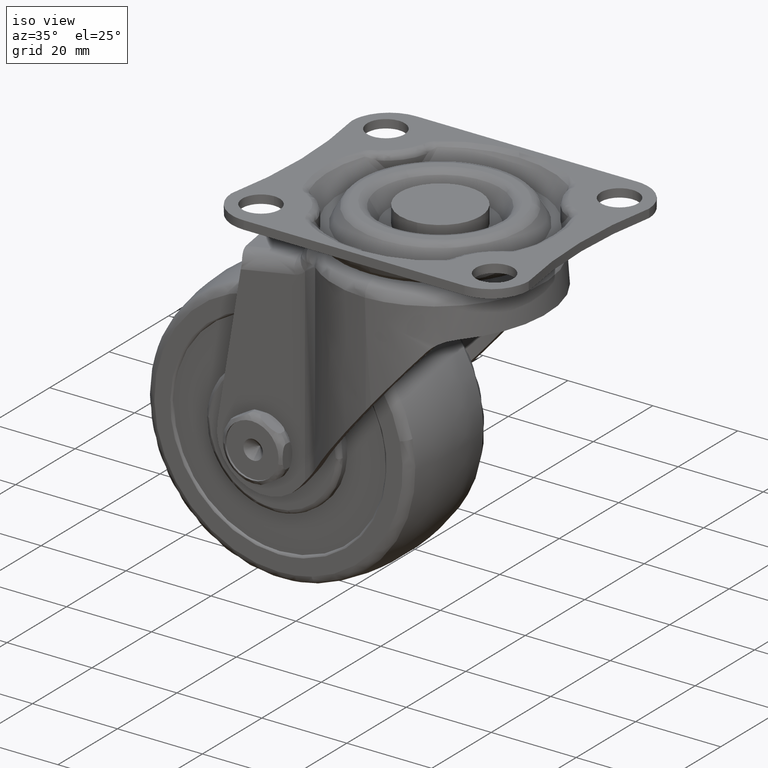
[diagram: clean part render]
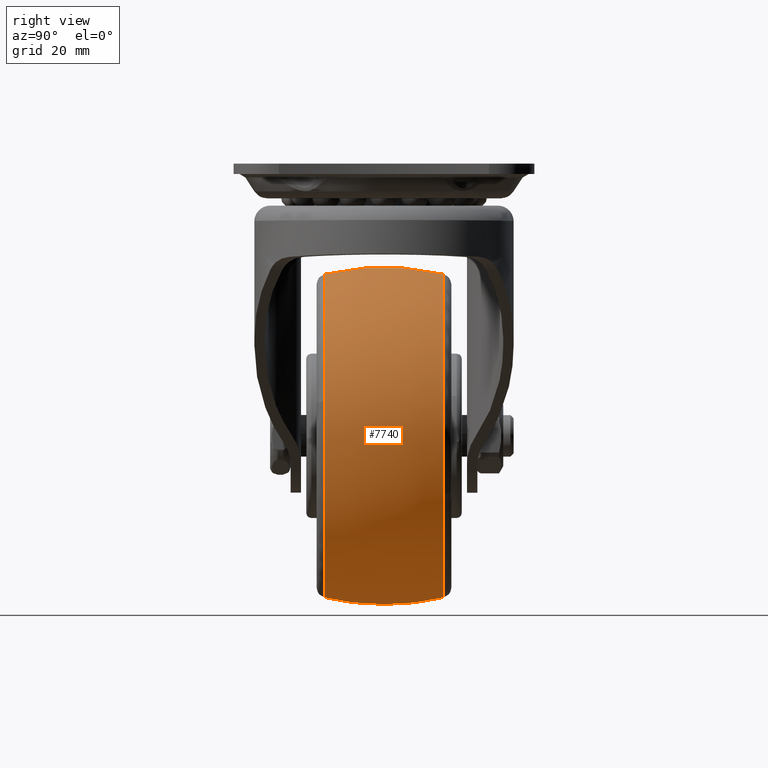
[diagram: tour spotlight — one face highlighted and labeled with its STEP entity id]
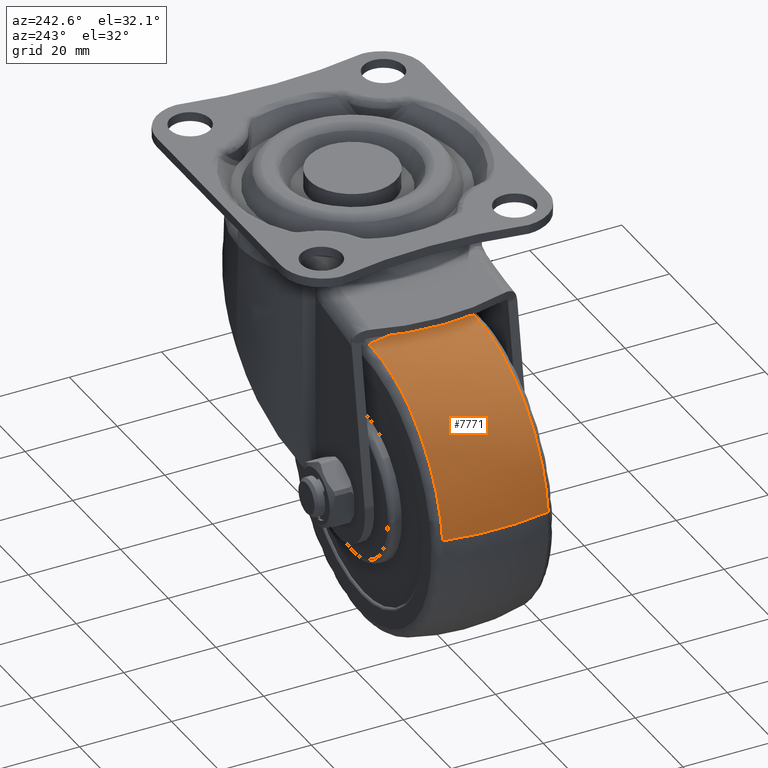
[diagram: tour spotlight — one face highlighted and labeled with its STEP entity id]
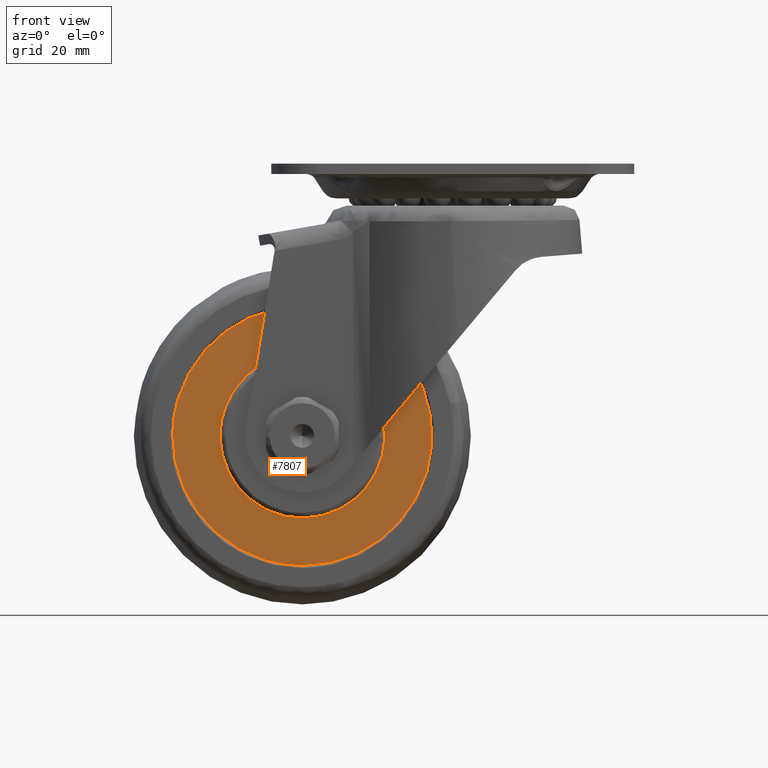
[diagram: tour spotlight — one face highlighted and labeled with its STEP entity id]
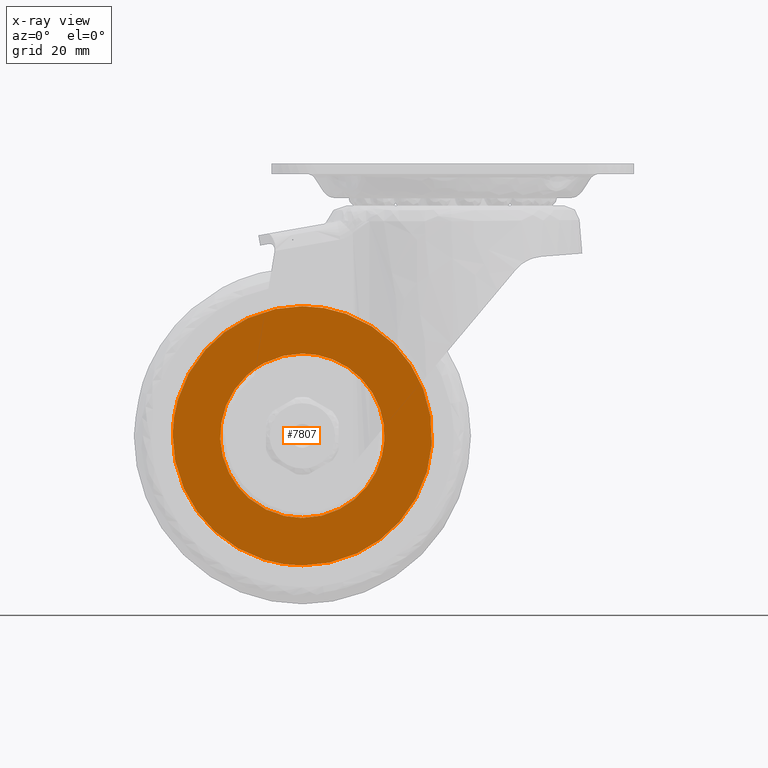
[diagram: x-ray of the same camera — body ghosted, this tour face saturated]
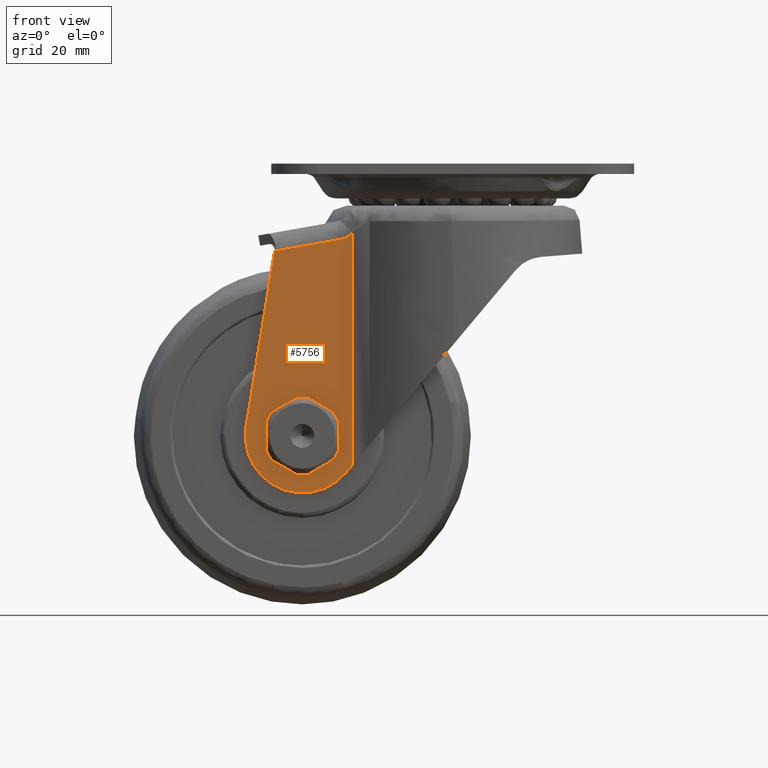
[diagram: tour spotlight — one face highlighted and labeled with its STEP entity id]
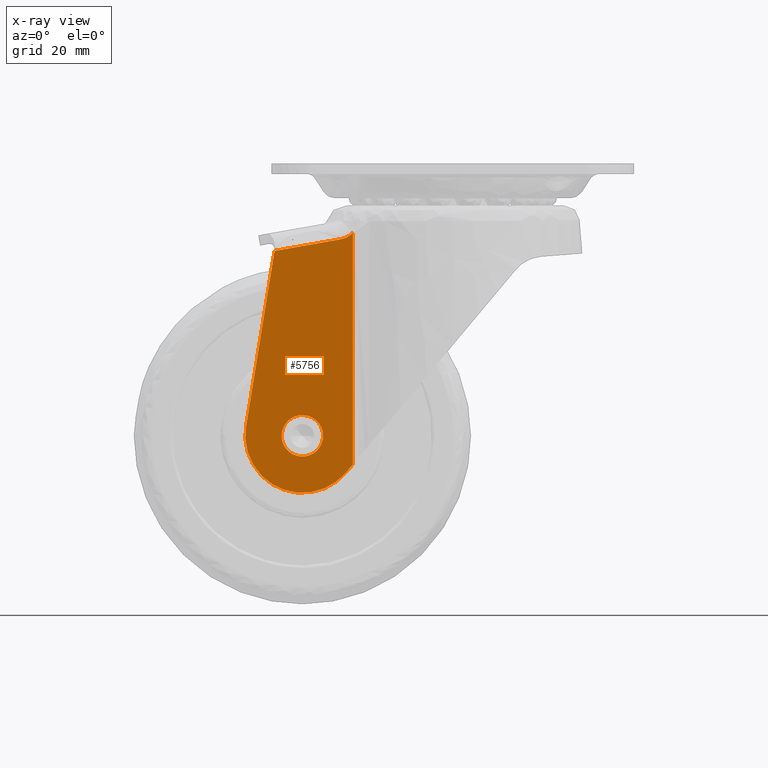
[diagram: x-ray of the same camera — body ghosted, this tour face saturated]
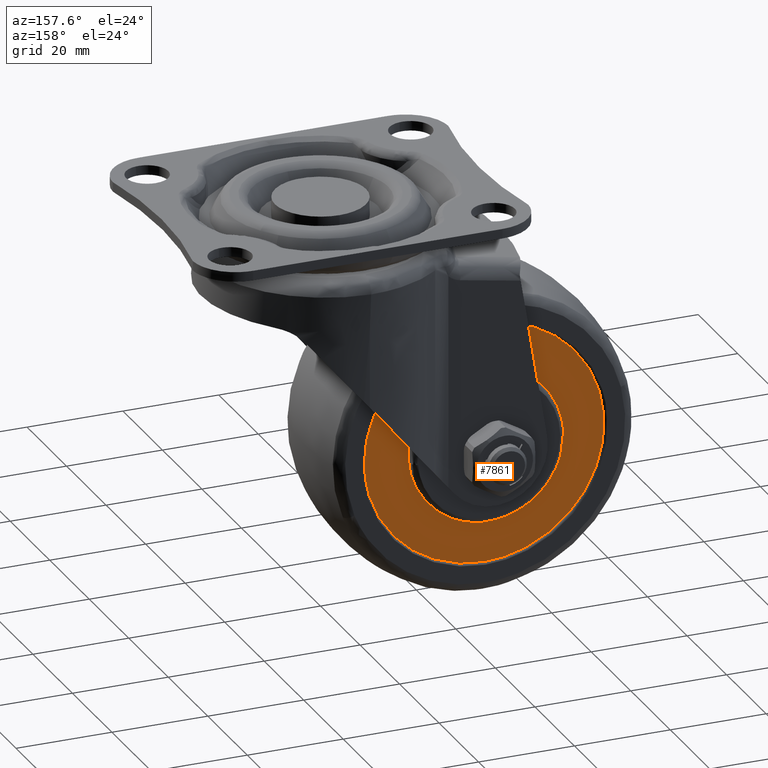
[diagram: tour spotlight — one face highlighted and labeled with its STEP entity id]
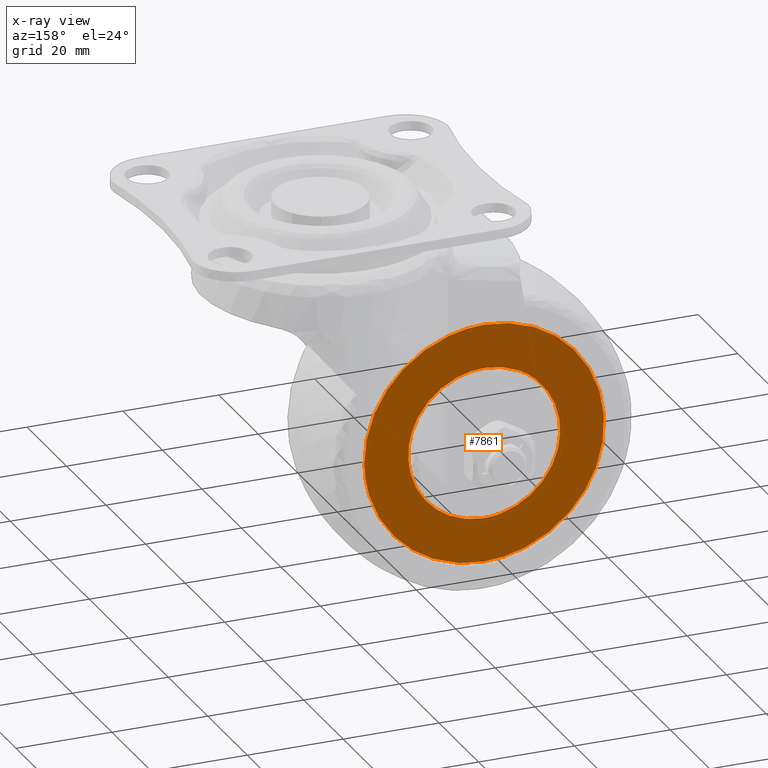
[diagram: x-ray of the same camera — body ghosted, this tour face saturated]
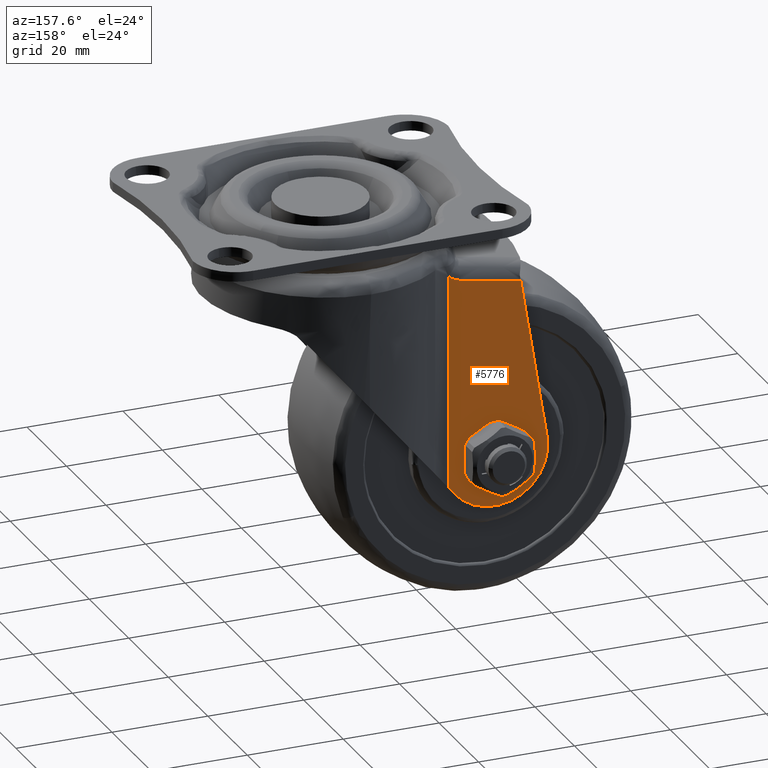
[diagram: tour spotlight — one face highlighted and labeled with its STEP entity id]
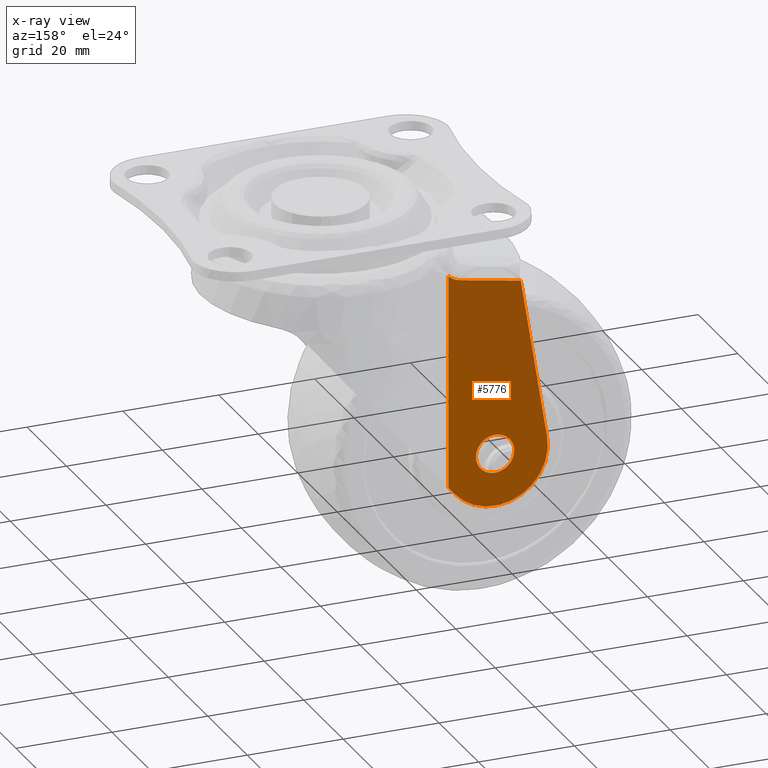
[diagram: x-ray of the same camera — body ghosted, this tour face saturated]
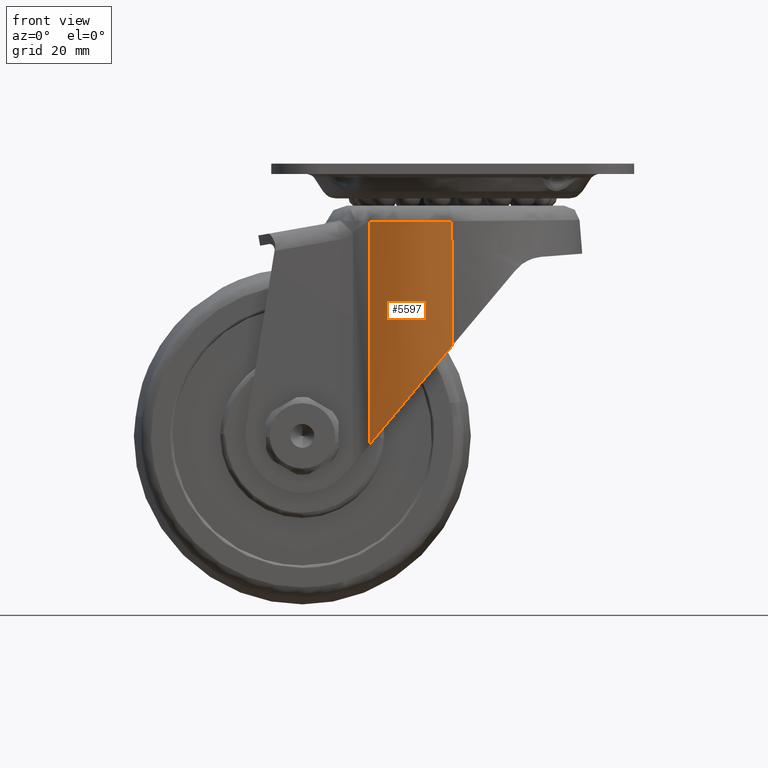
[diagram: tour spotlight — one face highlighted and labeled with its STEP entity id]
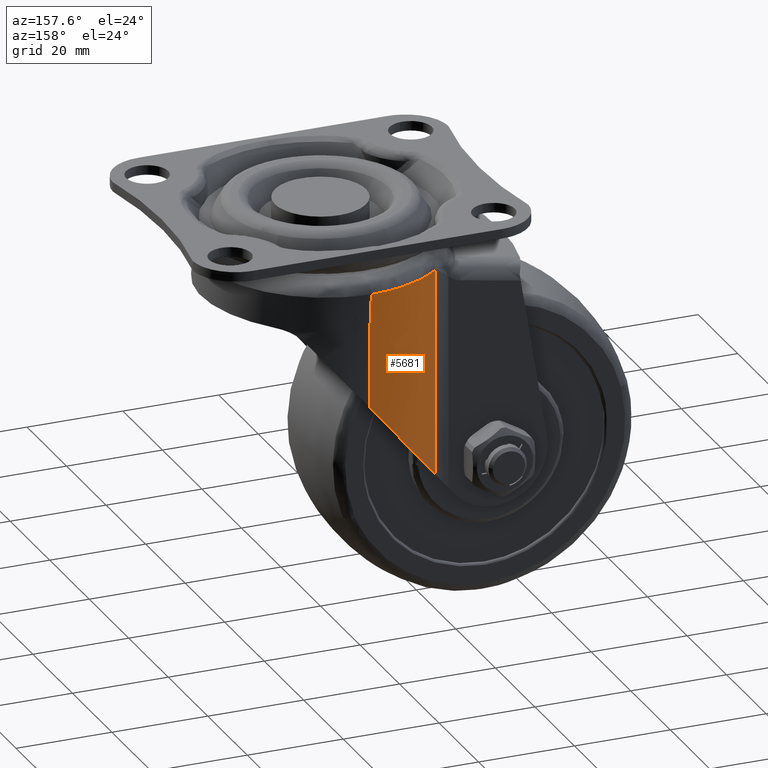
[diagram: tour spotlight — one face highlighted and labeled with its STEP entity id]
A machine part: a face-by-face anatomy tour. The part has 319 B-rep faces; the first image is the clean iso view, then the 8 largest visible faces are spotlighted one at a time (largest first), each with its STEP entity span.

Face 1 — right view, entity #7740. In plain terms, the highlighted face is a freeform B-spline surface patch.
Definition (entity closure, byte-faithful):
#6901=CARTESIAN_POINT('',(-20.660566736409869,-11.458333128361330,-82.533020700661865));
#6902=VERTEX_POINT('',#6901);
#6903=CARTESIAN_POINT('',(1.460820973468175,-11.458322088077271,-45.891868282301971));
#6904=VERTEX_POINT('',#6903);
#6905=CARTESIAN_POINT('',(-20.660566736409873,-11.458333128361327,-82.533020700661865));
#6906=CARTESIAN_POINT('',(2.169357885436947,-11.458331278257418,-76.193711815615330));
#6907=CARTESIAN_POINT('',(2.169357885436946,-11.458323995256890,-52.499991744358709));
#6908=CARTESIAN_POINT('',(2.169357885436946,-11.458322967974929,-49.157944598018375));
#6909=CARTESIAN_POINT('',(1.460820973468175,-11.458322088077265,-45.891868282301971));
#6917=(BOUNDED_CURVE()B_SPLINE_CURVE(2,(#6905,#6906,#6907,#6908,#6909),.UNSPECIFIED.,.F.,.U.)B_SPLINE_CURVE_WITH_KNOTS((3,2,3),(0.045601389092946,0.250000000000000,0.286296727419777),.UNSPECIFIED.)CURVE()GEOMETRIC_REPRESENTATION_ITEM()RATIONAL_B_SPLINE_CURVE((0.912639460507077,0.760532131721738,1.0,0.957475738694509,0.927299409559679))REPRESENTATION_ITEM(''));
#6918=EDGE_CURVE('',#6902,#6904,#6917,.T.);
#7003=CARTESIAN_POINT('',(-29.0,-11.458333576127499,-83.669351885436953));
#7004=VERTEX_POINT('',#7003);
#7005=CARTESIAN_POINT('',(-29.0,-11.458333576127499,-83.669351885436953));
#7006=CARTESIAN_POINT('',(-24.752865135220841,-11.458333576127504,-83.669351885436967));
#7007=CARTESIAN_POINT('',(-20.660566736409873,-11.458333128361327,-82.533020700661865));
#7015=(BOUNDED_CURVE()B_SPLINE_CURVE(2,(#7005,#7006,#7007),.UNSPECIFIED.,.F.,.U.)B_SPLINE_CURVE_WITH_KNOTS((3,3),(0.0,0.045601389092946),.UNSPECIFIED.)CURVE()GEOMETRIC_REPRESENTATION_ITEM()RATIONAL_B_SPLINE_CURVE((1.0,0.946574649464810,0.912639460507077))REPRESENTATION_ITEM(''));
#7016=EDGE_CURVE('',#7004,#6902,#7015,.T.);
#7065=CARTESIAN_POINT('',(-29.0,-11.458314414386280,-21.330631603280469));
#7066=VERTEX_POINT('',#7065);
#7067=CARTESIAN_POINT('',(1.460820973468175,-11.458322088077265,-45.891868282301971));
#7068=CARTESIAN_POINT('',(-3.867455548842277,-11.458314414386285,-21.330631603280466));
#7069=CARTESIAN_POINT('',(-29.0,-11.458314414386280,-21.330631603280469));
#7077=(BOUNDED_CURVE()B_SPLINE_CURVE(2,(#7067,#7068,#7069),.UNSPECIFIED.,.F.,.U.)B_SPLINE_CURVE_WITH_KNOTS((3,3),(0.286296727419777,0.500000000000000),.UNSPECIFIED.)CURVE()GEOMETRIC_REPRESENTATION_ITEM()RATIONAL_B_SPLINE_CURVE((0.927299409559679,0.749631042492039,1.0))REPRESENTATION_ITEM(''));
#7078=EDGE_CURVE('',#6904,#7066,#7077,.T.);
#7080=CARTESIAN_POINT('',(-59.960889706994010,-11.458327696816619,-48.901068350687751));
#7081=VERTEX_POINT('',#7080);
#7095=CARTESIAN_POINT('',(-59.960889706994010,-11.458327696816619,-48.901068350687751));
#7096=CARTESIAN_POINT('',(-60.169359224890151,-11.458327848450546,-50.694493248145946));
#7097=CARTESIAN_POINT('',(-60.169359185068870,-11.458328018731549,-52.499993848929442));
#7098=CARTESIAN_POINT('',(-60.169358497612002,-11.458330958386991,-83.669351814277093));
#7099=CARTESIAN_POINT('',(-29.0,-11.458333576127499,-83.669351885436953));
#7107=(BOUNDED_CURVE()B_SPLINE_CURVE(2,(#7095,#7096,#7097,#7098,#7099),.UNSPECIFIED.,.F.,.U.)B_SPLINE_CURVE_WITH_KNOTS((3,2,3),(0.730000111441285,0.750000000000000,1.0),.UNSPECIFIED.)CURVE()GEOMETRIC_REPRESENTATION_ITEM()RATIONAL_B_SPLINE_CURVE((0.956886337534242,0.976568673056510,1.0,0.707106781186548,1.0))REPRESENTATION_ITEM(''));
#7108=EDGE_CURVE('',#7081,#7004,#7107,.T.);
#7448=CARTESIAN_POINT('',(0.093170480936263,11.458332256036741,-63.685531286266610));
#7449=VERTEX_POINT('',#7448);
#7450=CARTESIAN_POINT('',(-29.0,11.458329815731391,-21.330636012916361));
#7451=VERTEX_POINT('',#7450);
#7452=CARTESIAN_POINT('',(0.093170480936263,11.458332256036744,-63.685531286266617));
#7453=CARTESIAN_POINT('',(2.169356895417397,11.458331906746663,-58.285446452260082));
#7454=CARTESIAN_POINT('',(2.169356895417397,11.458331579388179,-52.499993454166876));
#7455=CARTESIAN_POINT('',(2.169356895417394,11.458329815731389,-21.330636012916358));
#7456=CARTESIAN_POINT('',(-29.0,11.458329815731391,-21.330636012916361));
#7464=(BOUNDED_CURVE()B_SPLINE_CURVE(2,(#7452,#7453,#7454,#7455,#7456),.UNSPECIFIED.,.F.,.U.)B_SPLINE_CURVE_WITH_KNOTS((3,2,3),(0.189060939438090,0.250000000000000,0.500000000000000),.UNSPECIFIED.)CURVE()GEOMETRIC_REPRESENTATION_ITEM()RATIONAL_B_SPLINE_CURVE((0.892016633848281,0.928605449602218,1.0,0.707106781186548,1.0))REPRESENTATION_ITEM(''));
#7465=EDGE_CURVE('',#7449,#7451,#7464,.T.);
#7568=CARTESIAN_POINT('',(-29.0,11.458333343044981,-83.669350895417395));
#7569=VERTEX_POINT('',#7568);
#7570=CARTESIAN_POINT('',(-29.0,11.458333343044981,-83.669350895417395));
#7571=CARTESIAN_POINT('',(-7.590068043060631,11.458333343044977,-83.669350895417409));
#7572=CARTESIAN_POINT('',(0.093170480936263,11.458332256036744,-63.685531286266617));
#7580=(BOUNDED_CURVE()B_SPLINE_CURVE(2,(#7570,#7571,#7572),.UNSPECIFIED.,.F.,.U.)B_SPLINE_CURVE_WITH_KNOTS((3,3),(0.0,0.189060939438090),.UNSPECIFIED.)CURVE()GEOMETRIC_REPRESENTATION_ITEM()RATIONAL_B_SPLINE_CURVE((1.0,0.778501331584330,0.892016633848281))REPRESENTATION_ITEM(''));
#7581=EDGE_CURVE('',#7569,#7449,#7580,.T.);
#7583=CARTESIAN_POINT('',(-59.960886389567797,11.458339727400149,-48.901068866831011));
#7584=VERTEX_POINT('',#7583);
#7585=CARTESIAN_POINT('',(-59.960886389567804,11.458339727400146,-48.901068866831011));
#7586=CARTESIAN_POINT('',(-60.169355946455909,11.458339562740585,-50.694493636543129));
#7587=CARTESIAN_POINT('',(-60.169355974668072,11.458339377832109,-52.499994107028847));
#7588=CARTESIAN_POINT('',(-60.169356461710180,11.458336185654522,-83.669350945831980));
#7589=CARTESIAN_POINT('',(-29.0,11.458333343044981,-83.669350895417395));
#7597=(BOUNDED_CURVE()B_SPLINE_CURVE(2,(#7585,#7586,#7587,#7588,#7589),.UNSPECIFIED.,.F.,.U.)B_SPLINE_CURVE_WITH_KNOTS((3,2,3),(0.730000112144888,0.750000000000000,1.0),.UNSPECIFIED.)CURVE()GEOMETRIC_REPRESENTATION_ITEM()RATIONAL_B_SPLINE_CURVE((0.956886338919104,0.976568673880832,1.0,0.707106781186548,1.0))REPRESENTATION_ITEM(''));
#7598=EDGE_CURVE('',#7584,#7569,#7597,.T.);
#7648=CARTESIAN_POINT('',(-59.676608011860409,-12.612259279574280,-48.934093830908502));
#7649=CARTESIAN_POINT('',(-61.282626366451858,-6.409764787774078,-48.747407574071111));
#7650=CARTESIAN_POINT('',(-61.282626366451872,0.0,-48.747407574071119));
#7651=CARTESIAN_POINT('',(-61.282626366451851,6.409768463887968,-48.747407574071104));
#7652=CARTESIAN_POINT('',(-59.676606199484482,12.612266279026246,-48.934094041582085));
#7653=CARTESIAN_POINT('',(-59.883165691510058,-12.612259279574284,-50.711061404307124));
#7654=CARTESIAN_POINT('',(-61.499997999999906,-6.409764787774077,-50.617405072332630));
#7655=CARTESIAN_POINT('',(-61.499997999999898,0.0,-50.617405072332637));
#7656=CARTESIAN_POINT('',(-61.499997999999898,6.409768463887970,-50.617405072332630));
#7657=CARTESIAN_POINT('',(-59.883163866930687,12.612266279026247,-50.711061509997364));
#7658=CARTESIAN_POINT('',(-59.883165691510079,-12.612259279574284,-52.499994000000001));
#7659=CARTESIAN_POINT('',(-61.499997999999906,-6.409764787774079,-52.499994000000008));
#7660=CARTESIAN_POINT('',(-61.499997999999913,0.0,-52.499994000000001));
#7661=CARTESIAN_POINT('',(-61.499997999999906,6.409768463887970,-52.499994000000008));
#7662=CARTESIAN_POINT('',(-59.883163866930715,12.612266279026246,-52.499994000000001));
#7663=CARTESIAN_POINT('',(-59.883165691510065,-12.612259279574282,-83.383159691510059));
#7664=CARTESIAN_POINT('',(-61.499997999999913,-6.409764787774080,-84.999991999999921));
#7665=CARTESIAN_POINT('',(-61.499997999999927,0.0,-84.999991999999907));
#7666=CARTESIAN_POINT('',(-61.499997999999906,6.409768463887970,-84.999991999999921));
#7667=CARTESIAN_POINT('',(-59.883163866930722,12.612266279026249,-83.383157866930702));
#7668=CARTESIAN_POINT('',(-29.000000000000004,-12.612259279574284,-83.383159691510059));
#7669=CARTESIAN_POINT('',(-28.999999999999996,-6.409764787774079,-84.999991999999907));
#7670=CARTESIAN_POINT('',(-29.0,0.0,-84.999991999999907));
#7671=CARTESIAN_POINT('',(-29.000000000000004,6.409768463887970,-84.999991999999907));
#7672=CARTESIAN_POINT('',(-28.999999999999996,12.612266279026246,-83.383157866930702));
#7673=CARTESIAN_POINT('',(1.883165691510061,-12.612259279574282,-83.383159691510059));
#7674=CARTESIAN_POINT('',(3.499997999999903,-6.409764787774080,-84.999991999999921));
#7675=CARTESIAN_POINT('',(3.499997999999904,0.0,-84.999991999999907));
#7676=CARTESIAN_POINT('',(3.499997999999905,6.409768463887970,-84.999991999999921));
#7677=CARTESIAN_POINT('',(1.883163866930701,12.612266279026249,-83.383157866930702));
#7678=CARTESIAN_POINT('',(1.883165691510060,-12.612259279574284,-52.499994000000001));
#7679=CARTESIAN_POINT('',(3.499997999999903,-6.409764787774079,-52.499994000000008));
#7680=CARTESIAN_POINT('',(3.499997999999903,0.0,-52.499994000000001));
#7681=CARTESIAN_POINT('',(3.499997999999903,6.409768463887970,-52.499994000000008));
#7682=CARTESIAN_POINT('',(1.883163866930699,12.612266279026246,-52.499994000000001));
#7683=CARTESIAN_POINT('',(1.883165691510061,-12.612259279574282,-21.616828308489939));
#7684=CARTESIAN_POINT('',(3.499997999999903,-6.409764787774080,-19.999996000000102));
#7685=CARTESIAN_POINT('',(3.499997999999904,0.0,-19.999996000000092));
#7686=CARTESIAN_POINT('',(3.499997999999905,6.409768463887970,-19.999996000000088));
#7687=CARTESIAN_POINT('',(1.883163866930701,12.612266279026249,-21.616830133069296));
#7688=CARTESIAN_POINT('',(-29.000000000000004,-12.612259279574284,-21.616828308489932));
#7689=CARTESIAN_POINT('',(-28.999999999999996,-6.409764787774079,-19.999996000000095));
#7690=CARTESIAN_POINT('',(-29.0,0.0,-19.999996000000099));
#7691=CARTESIAN_POINT('',(-29.000000000000004,6.409768463887970,-19.999996000000092));
#7692=CARTESIAN_POINT('',(-28.999999999999996,12.612266279026246,-21.616830133069303));
#7700=(BOUNDED_SURFACE()B_SPLINE_SURFACE(2,2,((#7648,#7653,#7658,#7663,#7668,#7673,#7678,#7683,#7688),(#7649,#7654,#7659,#7664,#7669,#7674,#7679,#7684,#7689),(#7650,#7655,#7660,#7665,#7670,#7675,#7680,#7685,#7690),(#7651,#7656,#7661,#7666,#7671,#7676,#7681,#7686,#7691),(#7652,#7657,#7662,#7667,#7672,#7677,#7682,#7687,#7692)),.UNSPECIFIED.,.F.,.F.,.U.)B_SPLINE_SURFACE_WITH_KNOTS((3,2,3),(3,2,2,2,3),(0.0,13.118267728679619,26.236542690713851),(0.0,4.307819884902050,58.155579679695762,112.003339474489490,165.851099269283200),.UNSPECIFIED.)GEOMETRIC_REPRESENTATION_ITEM()RATIONAL_B_SPLINE_SURFACE(((0.899026056235791,0.917518339510513,0.939532961581826,0.664350128282790,0.939532961581826,0.664350128282790,0.939532961581826,0.664350128282790,0.939532961581826),(0.919976363264785,0.938899578445857,0.961427214671012,0.679831703111167,0.961427214671012,0.679831703111167,0.961427214671012,0.679831703111167,0.961427214671012),(0.956886126402807,0.976568547383107,1.0,0.707106781186548,1.0,0.707106781186548,1.0,0.707106781186548,1.0),(0.919976342912905,0.938899557675354,0.961427193402149,0.679831688071810,0.961427193402149,0.679831688071810,0.961427193402149,0.679831688071810,0.961427193402149),(0.899026033131984,0.917518315931477,0.939532937437044,0.664350111209850,0.939532937437044,0.664350111209850,0.939532937437044,0.664350111209850,0.939532937437044)))REPRESENTATION_ITEM('')SURFACE());
#7701=ORIENTED_EDGE('',*,*,#7108,.F.);
#7702=CARTESIAN_POINT('',(-59.960889706994010,-11.458327696816617,-48.901068350687751));
#7703=CARTESIAN_POINT('',(-61.282628527328640,-5.806426435773986,-48.747427221028147));
#7704=CARTESIAN_POINT('',(-61.282628406539047,-0.000000058270645,-48.747427268138971));
#7705=CARTESIAN_POINT('',(-61.282628285749297,5.806432642995308,-48.747427315249830));
#7706=CARTESIAN_POINT('',(-59.960886389567804,11.458339727400148,-48.901068866831011));
#7714=(BOUNDED_CURVE()B_SPLINE_CURVE(2,(#7702,#7703,#7704,#7705,#7706),.UNSPECIFIED.,.F.,.U.)B_SPLINE_CURVE_WITH_KNOTS((3,2,3),(0.401720402957721,0.500000000000000,0.598279700324625),.UNSPECIFIED.)CURVE()GEOMETRIC_REPRESENTATION_ITEM()RATIONAL_B_SPLINE_CURVE((0.902963413783866,0.923328758389054,0.956886118190660,0.923328723123516,0.902963370979868))REPRESENTATION_ITEM(''));
#7715=EDGE_CURVE('',#7081,#7584,#7714,.T.);
#7716=ORIENTED_EDGE('',*,*,#7715,.T.);
#7717=ORIENTED_EDGE('',*,*,#7598,.T.);
#7718=ORIENTED_EDGE('',*,*,#7581,.T.);
#7719=ORIENTED_EDGE('',*,*,#7465,.T.);
#7720=CARTESIAN_POINT('',(-29.0,-11.458314414386280,-21.330631603280477));
#7721=CARTESIAN_POINT('',(-28.999999999999996,-5.806419492232828,-19.999996000000102));
#7722=CARTESIAN_POINT('',(-29.0,0.0,-19.999996000000099));
#7723=CARTESIAN_POINT('',(-29.0,5.806427601139821,-19.999996000000092));
#7724=CARTESIAN_POINT('',(-28.999999999999996,11.458329815731389,-21.330636012916358));
#7732=(BOUNDED_CURVE()B_SPLINE_CURVE(2,(#7720,#7721,#7722,#7723,#7724),.UNSPECIFIED.,.F.,.U.)B_SPLINE_CURVE_WITH_KNOTS((3,2,3),(0.401720515893151,0.500000000000000,0.598279616544931),.UNSPECIFIED.)CURVE()GEOMETRIC_REPRESENTATION_ITEM()RATIONAL_B_SPLINE_CURVE((0.943647779420053,0.964930705334617,1.0,0.964930658076431,0.943647722059787))REPRESENTATION_ITEM(''));
#7733=EDGE_CURVE('',#7066,#7451,#7732,.T.);
#7734=ORIENTED_EDGE('',*,*,#7733,.F.);
#7735=ORIENTED_EDGE('',*,*,#7078,.F.);
#7736=ORIENTED_EDGE('',*,*,#6918,.F.);
#7737=ORIENTED_EDGE('',*,*,#7016,.F.);
#7738=EDGE_LOOP('',(#7701,#7716,#7717,#7718,#7719,#7734,#7735,#7736,#7737));
#7739=FACE_OUTER_BOUND('',#7738,.T.);
#7740=ADVANCED_FACE('',(#7739),#7700,.T.);

Face 2 — auxiliary view, entity #7771. In plain terms, the highlighted face is a freeform B-spline surface patch.
Definition (entity closure, byte-faithful):
#7065=CARTESIAN_POINT('',(-29.0,-11.458314414386280,-21.330631603280469));
#7066=VERTEX_POINT('',#7065);
#7080=CARTESIAN_POINT('',(-59.960889706994010,-11.458327696816619,-48.901068350687751));
#7081=VERTEX_POINT('',#7080);
#7082=CARTESIAN_POINT('',(-29.0,-11.458314414386280,-21.330631603280469));
#7083=CARTESIAN_POINT('',(-56.756073613667695,-11.458321055601452,-21.330633779011066));
#7084=CARTESIAN_POINT('',(-59.960889706994010,-11.458327696816619,-48.901068350687751));
#7092=(BOUNDED_CURVE()B_SPLINE_CURVE(2,(#7082,#7083,#7084),.UNSPECIFIED.,.F.,.U.)B_SPLINE_CURVE_WITH_KNOTS((3,3),(0.500000000000000,0.730000111441285),.UNSPECIFIED.)CURVE()GEOMETRIC_REPRESENTATION_ITEM()RATIONAL_B_SPLINE_CURVE((1.0,0.730538108130037,0.956886337534242))REPRESENTATION_ITEM(''));
#7093=EDGE_CURVE('',#7066,#7081,#7092,.T.);
#7450=CARTESIAN_POINT('',(-29.0,11.458329815731391,-21.330636012916361));
#7451=VERTEX_POINT('',#7450);
#7514=CARTESIAN_POINT('',(-59.190113184322740,11.458338880101540,-44.748490419698037));
#7515=VERTEX_POINT('',#7514);
#7529=CARTESIAN_POINT('',(-29.0,11.458329815731391,-21.330636012916361));
#7530=CARTESIAN_POINT('',(-53.177431257900729,11.458334132601101,-21.330636537689124));
#7531=CARTESIAN_POINT('',(-59.190113184322740,11.458338880101540,-44.748490419698044));
#7539=(BOUNDED_CURVE()B_SPLINE_CURVE(2,(#7529,#7530,#7531),.UNSPECIFIED.,.F.,.U.)B_SPLINE_CURVE_WITH_KNOTS((3,3),(0.500000000000000,0.707556762833923),.UNSPECIFIED.)CURVE()GEOMETRIC_REPRESENTATION_ITEM()RATIONAL_B_SPLINE_CURVE((1.0,0.756832126588288,0.917433346220928))REPRESENTATION_ITEM(''));
#7540=EDGE_CURVE('',#7451,#7515,#7539,.T.);
#7583=CARTESIAN_POINT('',(-59.960886389567797,11.458339727400149,-48.901068866831011));
#7584=VERTEX_POINT('',#7583);
#7600=CARTESIAN_POINT('',(-59.190113184322740,11.458338880101534,-44.748490419698044));
#7601=CARTESIAN_POINT('',(-59.716494366929538,11.458339349479271,-46.798609192709634));
#7602=CARTESIAN_POINT('',(-59.960886389567804,11.458339727400146,-48.901068866831011));
#7610=(BOUNDED_CURVE()B_SPLINE_CURVE(2,(#7600,#7601,#7602),.UNSPECIFIED.,.F.,.U.)B_SPLINE_CURVE_WITH_KNOTS((3,3),(0.707556762833923,0.730000112144888),.UNSPECIFIED.)CURVE()GEOMETRIC_REPRESENTATION_ITEM()RATIONAL_B_SPLINE_CURVE((0.917433346220929,0.934799339131824,0.956886338919104))REPRESENTATION_ITEM(''));
#7611=EDGE_CURVE('',#7515,#7584,#7610,.T.);
#7702=CARTESIAN_POINT('',(-59.960889706994010,-11.458327696816617,-48.901068350687751));
#7703=CARTESIAN_POINT('',(-61.282628527328640,-5.806426435773986,-48.747427221028147));
#7704=CARTESIAN_POINT('',(-61.282628406539047,-0.000000058270645,-48.747427268138971));
#7705=CARTESIAN_POINT('',(-61.282628285749297,5.806432642995308,-48.747427315249830));
#7706=CARTESIAN_POINT('',(-59.960886389567804,11.458339727400148,-48.901068866831011));
#7714=(BOUNDED_CURVE()B_SPLINE_CURVE(2,(#7702,#7703,#7704,#7705,#7706),.UNSPECIFIED.,.F.,.U.)B_SPLINE_CURVE_WITH_KNOTS((3,2,3),(0.401720402957721,0.500000000000000,0.598279700324625),.UNSPECIFIED.)CURVE()GEOMETRIC_REPRESENTATION_ITEM()RATIONAL_B_SPLINE_CURVE((0.902963413783866,0.923328758389054,0.956886118190660,0.923328723123516,0.902963370979868))REPRESENTATION_ITEM(''));
#7715=EDGE_CURVE('',#7081,#7584,#7714,.T.);
#7720=CARTESIAN_POINT('',(-29.0,-11.458314414386280,-21.330631603280477));
#7721=CARTESIAN_POINT('',(-28.999999999999996,-5.806419492232828,-19.999996000000102));
#7722=CARTESIAN_POINT('',(-29.0,0.0,-19.999996000000099));
#7723=CARTESIAN_POINT('',(-29.0,5.806427601139821,-19.999996000000092));
#7724=CARTESIAN_POINT('',(-28.999999999999996,11.458329815731389,-21.330636012916358));
#7732=(BOUNDED_CURVE()B_SPLINE_CURVE(2,(#7720,#7721,#7722,#7723,#7724),.UNSPECIFIED.,.F.,.U.)B_SPLINE_CURVE_WITH_KNOTS((3,2,3),(0.401720515893151,0.500000000000000,0.598279616544931),.UNSPECIFIED.)CURVE()GEOMETRIC_REPRESENTATION_ITEM()RATIONAL_B_SPLINE_CURVE((0.943647779420053,0.964930705334617,1.0,0.964930658076431,0.943647722059787))REPRESENTATION_ITEM(''));
#7733=EDGE_CURVE('',#7066,#7451,#7732,.T.);
#7741=CARTESIAN_POINT('',(-28.999999999999993,-12.612251930499600,-21.616826392773984));
#7742=CARTESIAN_POINT('',(-28.999999999999996,-6.409760928038472,-19.999996000000095));
#7743=CARTESIAN_POINT('',(-29.0,0.0,-19.999996000000099));
#7744=CARTESIAN_POINT('',(-29.0,6.409768280266078,-19.999996000000092));
#7745=CARTESIAN_POINT('',(-28.999999999999996,12.612265929403620,-21.616830041931536));
#7746=CARTESIAN_POINT('',(-56.501204449482280,-12.612251930499603,-21.616826392773984));
#7747=CARTESIAN_POINT('',(-57.940978495892196,-6.409760928038473,-19.999996000000099));
#7748=CARTESIAN_POINT('',(-57.940978495892196,0.0,-19.999996000000095));
#7749=CARTESIAN_POINT('',(-57.940978495892196,6.409768280266079,-19.999996000000088));
#7750=CARTESIAN_POINT('',(-56.501201199937782,12.612265929403627,-21.616830041931525));
#7751=CARTESIAN_POINT('',(-59.676609826808040,-12.612251930499601,-48.934092853052803));
#7752=CARTESIAN_POINT('',(-61.282626273891793,-6.409760928038472,-48.747406777798574));
#7753=CARTESIAN_POINT('',(-61.282626273891800,0.0,-48.747406777798574));
#7754=CARTESIAN_POINT('',(-61.282626273891793,6.409768280266078,-48.747406777798574));
#7755=CARTESIAN_POINT('',(-59.676606202057371,12.612265929403621,-48.934093274399963));
#7763=(BOUNDED_SURFACE()B_SPLINE_SURFACE(2,2,((#7741,#7746,#7751),(#7742,#7747,#7752),(#7743,#7748,#7753),(#7744,#7749,#7754),(#7745,#7750,#7755)),.UNSPECIFIED.,.F.,.F.,.U.)B_SPLINE_SURFACE_WITH_KNOTS((3,2,3),(3,3),(0.0,13.118260117179680,26.236534701068571),(0.0,49.485600535897547),.UNSPECIFIED.)GEOMETRIC_REPRESENTATION_ITEM()RATIONAL_B_SPLINE_SURFACE(((0.939532986932652,0.686364773466460,0.899026072778061),(0.961427237002254,0.702359360349781,0.919976376737859),(1.0,0.730538238691624,0.956886118190660),(0.961427194464529,0.702359329274346,0.919976336034100),(0.939532938643075,0.686364738189078,0.899026026570436)))REPRESENTATION_ITEM('')SURFACE());
#7764=ORIENTED_EDGE('',*,*,#7093,.F.);
#7765=ORIENTED_EDGE('',*,*,#7733,.T.);
#7766=ORIENTED_EDGE('',*,*,#7540,.T.);
#7767=ORIENTED_EDGE('',*,*,#7611,.T.);
#7768=ORIENTED_EDGE('',*,*,#7715,.F.);
#7769=EDGE_LOOP('',(#7764,#7765,#7766,#7767,#7768));
#7770=FACE_OUTER_BOUND('',#7769,.T.);
#7771=ADVANCED_FACE('',(#7770),#7763,.T.);

Face 3 — front view, entity #7807. An x-ray twin of the same camera follows (body ghosted, this face saturated) — the face is partly hidden behind the body. In plain terms, the highlighted face is a freeform B-spline surface patch.
Definition (entity closure, byte-faithful):
#5860=CARTESIAN_POINT('',(-39.371282423906891,-12.500000000001441,-64.485775959620341));
#5861=VERTEX_POINT('',#5860);
#5862=CARTESIAN_POINT('',(-29.0,-12.499999999999879,-68.349992999999998));
#5863=VERTEX_POINT('',#5862);
#5864=CARTESIAN_POINT('',(-39.371282423906891,-12.500000000001446,-64.485775959620341));
#5865=CARTESIAN_POINT('',(-34.905521605997791,-12.499999999999876,-68.349993000000012));
#5866=CARTESIAN_POINT('',(-29.0,-12.499999999999879,-68.349992999999998));
#5874=(BOUNDED_CURVE()B_SPLINE_CURVE(2,(#5864,#5865,#5866),.UNSPECIFIED.,.F.,.U.)B_SPLINE_CURVE_WITH_KNOTS((3,3),(0.885882132181982,1.0),.UNSPECIFIED.)CURVE()GEOMETRIC_REPRESENTATION_ITEM()RATIONAL_B_SPLINE_CURVE((0.854663299378184,0.866302601482610,1.0))REPRESENTATION_ITEM(''));
#5875=EDGE_CURVE('',#5861,#5863,#5874,.T.);
#5877=CARTESIAN_POINT('',(-29.0,-12.499999999999879,-36.649994999999997));
#5878=VERTEX_POINT('',#5877);
#5879=CARTESIAN_POINT('',(-29.0,-12.499999999999879,-68.349992999999998));
#5880=CARTESIAN_POINT('',(-13.150001000000001,-12.499999999999879,-68.349992999999998));
#5881=CARTESIAN_POINT('',(-13.150001000000000,-12.499999999999879,-52.499994000000001));
#5882=CARTESIAN_POINT('',(-13.150001000000001,-12.499999999999879,-36.649995000000004));
#5883=CARTESIAN_POINT('',(-29.0,-12.499999999999879,-36.649994999999997));
#5891=(BOUNDED_CURVE()B_SPLINE_CURVE(2,(#5879,#5880,#5881,#5882,#5883),.UNSPECIFIED.,.F.,.U.)B_SPLINE_CURVE_WITH_KNOTS((3,2,3),(0.0,0.250000000000000,0.500000000000000),.UNSPECIFIED.)CURVE()GEOMETRIC_REPRESENTATION_ITEM()RATIONAL_B_SPLINE_CURVE((1.0,0.707106781186547,1.0,0.707106781186547,1.0))REPRESENTATION_ITEM(''));
#5892=EDGE_CURVE('',#5863,#5878,#5891,.T.);
#5894=CARTESIAN_POINT('',(-39.708103048222839,-12.499999999999879,-40.814147971207753));
#5895=VERTEX_POINT('',#5894);
#5896=CARTESIAN_POINT('',(-29.0,-12.499999999999879,-36.649994999999997));
#5897=CARTESIAN_POINT('',(-35.163726678035921,-12.499999999999885,-36.649995000000004));
#5898=CARTESIAN_POINT('',(-39.708103048222888,-12.499999999999883,-40.814147971207703));
#5906=(BOUNDED_CURVE()B_SPLINE_CURVE(2,(#5896,#5897,#5898),.UNSPECIFIED.,.F.,.U.)B_SPLINE_CURVE_WITH_KNOTS((3,3),(0.500000000000000,0.618415195301698),.UNSPECIFIED.)CURVE()GEOMETRIC_REPRESENTATION_ITEM()RATIONAL_B_SPLINE_CURVE((1.0,0.861267969166648,0.853959782539157))REPRESENTATION_ITEM(''));
#5907=EDGE_CURVE('',#5878,#5895,#5906,.T.);
#6004=CARTESIAN_POINT('',(-39.708103048222888,-12.499999999999883,-40.814147971207703));
#6005=CARTESIAN_POINT('',(-44.849999000000004,-12.499999999999877,-45.525826661754316));
#6006=CARTESIAN_POINT('',(-44.849998999999997,-12.499999999999879,-52.499994000000001));
#6007=CARTESIAN_POINT('',(-44.849999000000004,-12.499999999999879,-59.745049616228492));
#6008=CARTESIAN_POINT('',(-39.371282423906898,-12.500000000001442,-64.485775959620355));
#6016=(BOUNDED_CURVE()B_SPLINE_CURVE(2,(#6004,#6005,#6006,#6007,#6008),.UNSPECIFIED.,.F.,.U.)B_SPLINE_CURVE_WITH_KNOTS((3,2,3),(0.618415195301698,0.750000000000000,0.885882132181983),.UNSPECIFIED.)CURVE()GEOMETRIC_REPRESENTATION_ITEM()RATIONAL_B_SPLINE_CURVE((0.853959782539157,0.845838812019899,1.0,0.840804179703936,0.854663299378184))REPRESENTATION_ITEM(''));
#6017=EDGE_CURVE('',#5895,#5861,#6016,.T.);
#6496=CARTESIAN_POINT('',(-4.060858153990714,-12.500000000183070,-54.243325289407807));
#6497=VERTEX_POINT('',#6496);
#6511=CARTESIAN_POINT('',(-29.0,-12.499999999999879,-77.499994000000001));
#6512=VERTEX_POINT('',#6511);
#6513=CARTESIAN_POINT('',(-29.0,-12.499999999999879,-77.499994000000001));
#6514=CARTESIAN_POINT('',(-5.686578818375272,-12.499999999999877,-77.499994000000015));
#6515=CARTESIAN_POINT('',(-4.060858153990715,-12.500000000183071,-54.243325289407807));
#6523=(BOUNDED_CURVE()B_SPLINE_CURVE(2,(#6513,#6514,#6515),.UNSPECIFIED.,.F.,.U.)B_SPLINE_CURVE_WITH_KNOTS((3,3),(0.0,0.237833686534835),.UNSPECIFIED.)CURVE()GEOMETRIC_REPRESENTATION_ITEM()RATIONAL_B_SPLINE_CURVE((1.0,0.721360504034170,0.972879876386432))REPRESENTATION_ITEM(''));
#6524=EDGE_CURVE('',#6512,#6497,#6523,.T.);
#6526=CARTESIAN_POINT('',(-53.998026105094802,-12.500000000162540,-52.185843002867699));
#6527=VERTEX_POINT('',#6526);
#6528=CARTESIAN_POINT('',(-53.998026105094802,-12.500000000162540,-52.185843002867699));
#6529=CARTESIAN_POINT('',(-54.000000000000014,-12.499999999999876,-52.342912300154268));
#6530=CARTESIAN_POINT('',(-54.000000000000007,-12.499999999999879,-52.499994000000001));
#6531=CARTESIAN_POINT('',(-54.000000000000007,-12.499999999999879,-77.499994000000001));
#6532=CARTESIAN_POINT('',(-29.0,-12.499999999999879,-77.499994000000001));
#6540=(BOUNDED_CURVE()B_SPLINE_CURVE(2,(#6528,#6529,#6530,#6531,#6532),.UNSPECIFIED.,.F.,.U.)B_SPLINE_CURVE_WITH_KNOTS((3,2,3),(0.747784295921046,0.750000000000000,1.0),.UNSPECIFIED.)CURVE()GEOMETRIC_REPRESENTATION_ITEM()RATIONAL_B_SPLINE_CURVE((0.994854295642442,0.997404141201508,1.0,0.707106781186547,1.0))REPRESENTATION_ITEM(''));
#6541=EDGE_CURVE('',#6527,#6512,#6540,.T.);
#6636=CARTESIAN_POINT('',(-29.0,-12.499999999999879,-27.499994000000001));
#6637=VERTEX_POINT('',#6636);
#6638=CARTESIAN_POINT('',(-29.0,-12.499999999999879,-27.499994000000001));
#6639=CARTESIAN_POINT('',(-53.687798247586983,-12.499999999999877,-27.499994000000008));
#6640=CARTESIAN_POINT('',(-53.998026105094795,-12.500000000162542,-52.185843002867692));
#6648=(BOUNDED_CURVE()B_SPLINE_CURVE(2,(#6638,#6639,#6640),.UNSPECIFIED.,.F.,.U.)B_SPLINE_CURVE_WITH_KNOTS((3,3),(0.500000000000000,0.747784295921045),.UNSPECIFIED.)CURVE()GEOMETRIC_REPRESENTATION_ITEM()RATIONAL_B_SPLINE_CURVE((1.0,0.709702639985040,0.994854295642440))REPRESENTATION_ITEM(''));
#6649=EDGE_CURVE('',#6637,#6527,#6648,.T.);
#6651=CARTESIAN_POINT('',(-4.060858153990714,-12.500000000183073,-54.243325289407800));
#6652=CARTESIAN_POINT('',(-4.0,-12.499999999999876,-53.372721896889622));
#6653=CARTESIAN_POINT('',(-4.0,-12.499999999999879,-52.499994000000001));
#6654=CARTESIAN_POINT('',(-4.0,-12.499999999999879,-27.499994000000001));
#6655=CARTESIAN_POINT('',(-29.0,-12.499999999999879,-27.499994000000001));
#6663=(BOUNDED_CURVE()B_SPLINE_CURVE(2,(#6651,#6652,#6653,#6654,#6655),.UNSPECIFIED.,.F.,.U.)B_SPLINE_CURVE_WITH_KNOTS((3,2,3),(0.237833686534835,0.250000000000000,0.500000000000000),.UNSPECIFIED.)CURVE()GEOMETRIC_REPRESENTATION_ITEM()RATIONAL_B_SPLINE_CURVE((0.972879876386432,0.985746277152377,1.0,0.707106781186547,1.0))REPRESENTATION_ITEM(''));
#6664=EDGE_CURVE('',#6497,#6637,#6663,.T.);
#7790=CARTESIAN_POINT('',(-56.495286869852663,-12.499999999999879,-79.997492494997616));
#7791=CARTESIAN_POINT('',(-56.495286869852663,-12.499999999999879,-25.002492822793361));
#7792=CARTESIAN_POINT('',(-1.505590925523524,-12.499999999999879,-79.997492494997616));
#7793=CARTESIAN_POINT('',(-1.505590925523524,-12.499999999999879,-25.002492822793361));
#7794=B_SPLINE_SURFACE_WITH_KNOTS('',1,1,((#7790,#7792),(#7791,#7793)),.UNSPECIFIED.,.F.,.F.,.U.,(2,2),(2,2),(0.0,54.994999672204258),(0.0,54.989695944329142),.UNSPECIFIED.);
#7795=ORIENTED_EDGE('',*,*,#6524,.T.);
#7796=ORIENTED_EDGE('',*,*,#6664,.T.);
#7797=ORIENTED_EDGE('',*,*,#6649,.T.);
#7798=ORIENTED_EDGE('',*,*,#6541,.T.);
#7799=EDGE_LOOP('',(#7795,#7796,#7797,#7798));
#7800=FACE_OUTER_BOUND('',#7799,.T.);
#7801=ORIENTED_EDGE('',*,*,#5892,.F.);
#7802=ORIENTED_EDGE('',*,*,#5875,.F.);
#7803=ORIENTED_EDGE('',*,*,#6017,.F.);
#7804=ORIENTED_EDGE('',*,*,#5907,.F.);
#7805=EDGE_LOOP('',(#7801,#7802,#7803,#7804));
#7806=FACE_BOUND('',#7805,.T.);
#7807=ADVANCED_FACE('',(#7800,#7806),#7794,.F.);

Face 4 — front view, entity #5756. An x-ray twin of the same camera follows (body ghosted, this face saturated) — the face is partly hidden behind the body. In plain terms, the highlighted face is a freeform B-spline surface patch.
Definition (entity closure, byte-faithful):
#688=CARTESIAN_POINT('',(-25.007460806327789,-18.0,-52.255799841609743));
#689=VERTEX_POINT('',#688);
#695=CARTESIAN_POINT('',(-29.0,-18.0,-48.499993999999923));
#696=VERTEX_POINT('',#695);
#697=CARTESIAN_POINT('',(-29.0,-18.0,-48.499993999999923));
#698=CARTESIAN_POINT('',(-25.237175732850805,-18.000000000000011,-48.499993999999923));
#699=CARTESIAN_POINT('',(-25.007460806327799,-17.999999999999996,-52.255799841609736));
#707=(BOUNDED_CURVE()B_SPLINE_CURVE(2,(#697,#698,#699),.UNSPECIFIED.,.F.,.U.)B_SPLINE_CURVE_WITH_KNOTS((3,3),(0.500000000000000,0.739332962220289),.UNSPECIFIED.)CURVE()GEOMETRIC_REPRESENTATION_ITEM()RATIONAL_B_SPLINE_CURVE((1.0,0.719603993308565,0.976072041626739))REPRESENTATION_ITEM(''));
#708=EDGE_CURVE('',#696,#689,#707,.T.);
#710=CARTESIAN_POINT('',(-32.972038105426847,-18.0,-52.972130938861781));
#711=VERTEX_POINT('',#710);
#712=CARTESIAN_POINT('',(-32.972038105426847,-17.999999999999996,-52.972130938861788));
#713=CARTESIAN_POINT('',(-33.000000000000085,-18.000000000000004,-52.736890478844863));
#714=CARTESIAN_POINT('',(-33.000000000000092,-18.0,-52.499994000000001));
#715=CARTESIAN_POINT('',(-33.000000000000085,-18.000000000000007,-48.499993999999930));
#716=CARTESIAN_POINT('',(-29.0,-18.0,-48.499993999999923));
#724=(BOUNDED_CURVE()B_SPLINE_CURVE(2,(#712,#713,#714,#715,#716),.UNSPECIFIED.,.F.,.U.)B_SPLINE_CURVE_WITH_KNOTS((3,2,3),(0.229562473495669,0.250000000000000,0.500000000000000),.UNSPECIFIED.)CURVE()GEOMETRIC_REPRESENTATION_ITEM()RATIONAL_B_SPLINE_CURVE((0.956026754148732,0.976055948310244,1.0,0.707106781186547,1.0))REPRESENTATION_ITEM(''));
#725=EDGE_CURVE('',#711,#696,#724,.T.);
#769=CARTESIAN_POINT('',(-29.0,-18.0,-56.499994000000093));
#770=VERTEX_POINT('',#769);
#771=CARTESIAN_POINT('',(-29.0,-18.0,-56.499994000000093));
#772=CARTESIAN_POINT('',(-32.552698103382667,-18.000000000000007,-56.499994000000079));
#773=CARTESIAN_POINT('',(-32.972038105426854,-18.000000000000004,-52.972130938861781));
#781=(BOUNDED_CURVE()B_SPLINE_CURVE(2,(#771,#772,#773),.UNSPECIFIED.,.F.,.U.)B_SPLINE_CURVE_WITH_KNOTS((3,3),(0.0,0.229562473495669),.UNSPECIFIED.)CURVE()GEOMETRIC_REPRESENTATION_ITEM()RATIONAL_B_SPLINE_CURVE((1.0,0.731050832876303,0.956026754148733))REPRESENTATION_ITEM(''));
#782=EDGE_CURVE('',#770,#711,#781,.T.);
#784=CARTESIAN_POINT('',(-25.007460806327796,-17.999999999999993,-52.255799841609736));
#785=CARTESIAN_POINT('',(-24.999999999999922,-18.000000000000007,-52.377782946554106));
#786=CARTESIAN_POINT('',(-24.999999999999918,-18.0,-52.499994000000001));
#787=CARTESIAN_POINT('',(-24.999999999999918,-18.000000000000007,-56.499994000000079));
#788=CARTESIAN_POINT('',(-29.0,-18.0,-56.499994000000093));
#796=(BOUNDED_CURVE()B_SPLINE_CURVE(2,(#784,#785,#786,#787,#788),.UNSPECIFIED.,.F.,.U.)B_SPLINE_CURVE_WITH_KNOTS((3,2,3),(0.739332962220288,0.750000000000000,1.0),.UNSPECIFIED.)CURVE()GEOMETRIC_REPRESENTATION_ITEM()RATIONAL_B_SPLINE_CURVE((0.976072041626737,0.987502787877982,1.0,0.707106781186547,1.0))REPRESENTATION_ITEM(''));
#797=EDGE_CURVE('',#689,#770,#796,.T.);
#3486=CARTESIAN_POINT('',(-19.261344709030698,-18.0,-13.353386034379520));
#3487=VERTEX_POINT('',#3486);
#3603=CARTESIAN_POINT('',(-21.684293381118451,-18.0,-14.619490965371080));
#3604=VERTEX_POINT('',#3603);
#3620=CARTESIAN_POINT('',(-19.261344709030752,-18.0,-13.353386034379559));
#3621=CARTESIAN_POINT('',(-19.424786917741461,-18.0,-13.519680463279791));
#3622=CARTESIAN_POINT('',(-19.600007818133271,-18.0,-13.671165488586810));
#3623=CARTESIAN_POINT('',(-19.879673605700329,-18.000000000000011,-13.877227010979130));
#3624=CARTESIAN_POINT('',(-19.975717030543720,-18.0,-13.942366705558410));
#3625=CARTESIAN_POINT('',(-20.173488502322581,-18.0,-14.065498793037220));
#3626=CARTESIAN_POINT('',(-20.274403303041229,-18.000000000000011,-14.122969876067661));
#3627=CARTESIAN_POINT('',(-20.581706532522720,-18.0,-14.282762782259489));
#3628=CARTESIAN_POINT('',(-20.793189863743919,-18.0,-14.372898345873960));
#3629=CARTESIAN_POINT('',(-21.120167282705012,-18.0,-14.483931826377759));
#3630=CARTESIAN_POINT('',(-21.230793234881091,-18.0,-14.516894661850330));
#3631=CARTESIAN_POINT('',(-21.455382349662180,-18.0,-14.574549574598111));
#3632=CARTESIAN_POINT('',(-21.569519175431580,-18.0,-14.599253167892201));
#3633=CARTESIAN_POINT('',(-21.684293381118451,-18.0,-14.619490965371080));
#3634=B_SPLINE_CURVE_WITH_KNOTS('',3,(#3620,#3621,#3622,#3623,#3624,#3625,#3626,#3627,#3628,#3629,#3630,#3631,#3632,#3633),.UNSPECIFIED.,.F.,.U.,(4,2,2,2,2,2,4),(0.0,0.250000000000001,0.374999999999999,0.499999999999998,0.749999999999999,0.875000000000000,1.0),.UNSPECIFIED.);
#3635=EDGE_CURVE('',#3487,#3604,#3634,.T.);
#3672=CARTESIAN_POINT('',(-34.369345867787899,-18.0,-16.856208753988650));
#3673=VERTEX_POINT('',#3672);
#3683=CARTESIAN_POINT('',(-21.684293381118451,-18.0,-14.619490965371080));
#3684=CARTESIAN_POINT('',(-23.982178109639730,-18.0,-15.024670208266389));
#3685=CARTESIAN_POINT('',(-26.280062841067402,-18.0,-15.429849434678671));
#3686=CARTESIAN_POINT('',(-28.577947574368601,-18.0,-15.835028650465700));
#3687=CARTESIAN_POINT('',(-30.508413670959460,-18.0,-16.175422025200572));
#3688=CARTESIAN_POINT('',(-32.438879768890558,-18.0,-16.515815392334520));
#3689=CARTESIAN_POINT('',(-34.369345867787899,-18.0,-16.856208753988650));
#3690=B_SPLINE_CURVE_WITH_KNOTS('',3,(#3683,#3684,#3685,#3686,#3687,#3688,#3689),.UNSPECIFIED.,.F.,.U.,(4,3,4),(0.0,0.007000000000000,0.012880740004188),.UNSPECIFIED.);
#3691=EDGE_CURVE('',#3604,#3673,#3690,.T.);
#4665=CARTESIAN_POINT('',(-20.570011856805650,-18.0,-59.566490250320797));
#4666=VERTEX_POINT('',#4665);
#4777=CARTESIAN_POINT('',(-19.261344709030698,-18.0,-58.005313428782898));
#4778=VERTEX_POINT('',#4777);
#4792=CARTESIAN_POINT('',(-20.570011856805650,-18.0,-59.566490250320797));
#4793=CARTESIAN_POINT('',(-19.261344709030698,-18.0,-58.005313428782898));
#4794=QUASI_UNIFORM_CURVE('',1,(#4792,#4793),.UNSPECIFIED.,.F.,.U.);
#4795=EDGE_CURVE('',#4666,#4778,#4794,.T.);
#5000=CARTESIAN_POINT('',(-39.858448284436101,-18.0,-50.741002755853508));
#5001=VERTEX_POINT('',#5000);
#5002=CARTESIAN_POINT('',(-34.369345867787899,-18.0,-16.856208753988650));
#5003=CARTESIAN_POINT('',(-39.858448284436101,-18.0,-50.741002755853508));
#5004=QUASI_UNIFORM_CURVE('',1,(#5002,#5003),.UNSPECIFIED.,.F.,.U.);
#5005=EDGE_CURVE('',#3673,#5001,#5004,.T.);
#5071=CARTESIAN_POINT('',(-20.570011856805650,-18.0,-59.566490250320797));
#5072=CARTESIAN_POINT('',(-25.954696231645951,-18.000000000000004,-65.990159134797253));
#5073=CARTESIAN_POINT('',(-33.576750946330762,-18.0,-62.502662944062202));
#5074=CARTESIAN_POINT('',(-41.198805661015570,-18.000000000000004,-59.015166753327186));
#5075=CARTESIAN_POINT('',(-39.858448284436122,-18.0,-50.741002755853522));
#5083=(BOUNDED_CURVE()B_SPLINE_CURVE(2,(#5071,#5072,#5073,#5074,#5075),.UNSPECIFIED.,.F.,.U.)B_SPLINE_CURVE_WITH_KNOTS((3,2,3),(0.0,0.500000000000000,1.0),.UNSPECIFIED.)CURVE()GEOMETRIC_REPRESENTATION_ITEM()RATIONAL_B_SPLINE_CURVE((1.0,0.795394320018219,1.0,0.795394320018219,1.0))REPRESENTATION_ITEM(''));
#5084=EDGE_CURVE('',#4666,#5001,#5083,.T.);
#5615=CARTESIAN_POINT('',(-19.261344709030698,-18.0,-58.005313428782898));
#5616=CARTESIAN_POINT('',(-19.261344709030698,-18.0,-13.353386034379520));
#5617=QUASI_UNIFORM_CURVE('',1,(#5615,#5616),.UNSPECIFIED.,.F.,.U.);
#5618=EDGE_CURVE('',#4778,#3487,#5617,.T.);
#5737=CARTESIAN_POINT('',(-41.034914522022412,-18.0,-10.848569365102071));
#5738=CARTESIAN_POINT('',(-41.034914522022412,-18.0,-66.004675988417716));
#5739=CARTESIAN_POINT('',(-18.225495043933059,-18.0,-10.848569365102071));
#5740=CARTESIAN_POINT('',(-18.225495043933059,-18.0,-66.004675988417716));
#5741=B_SPLINE_SURFACE_WITH_KNOTS('',1,1,((#5737,#5739),(#5738,#5740)),.UNSPECIFIED.,.F.,.F.,.U.,(2,2),(2,2),(0.0,55.156106623315637),(0.0,22.809419478089350),.UNSPECIFIED.);
#5742=ORIENTED_EDGE('',*,*,#5618,.T.);
#5743=ORIENTED_EDGE('',*,*,#3635,.T.);
#5744=ORIENTED_EDGE('',*,*,#3691,.T.);
#5745=ORIENTED_EDGE('',*,*,#5005,.T.);
#5746=ORIENTED_EDGE('',*,*,#5084,.F.);
#5747=ORIENTED_EDGE('',*,*,#4795,.T.);
#5748=EDGE_LOOP('',(#5742,#5743,#5744,#5745,#5746,#5747));
#5749=FACE_OUTER_BOUND('',#5748,.T.);
#5750=ORIENTED_EDGE('',*,*,#708,.T.);
#5751=ORIENTED_EDGE('',*,*,#797,.T.);
#5752=ORIENTED_EDGE('',*,*,#782,.T.);
#5753=ORIENTED_EDGE('',*,*,#725,.T.);
#5754=EDGE_LOOP('',(#5750,#5751,#5752,#5753));
#5755=FACE_BOUND('',#5754,.T.);
#5756=ADVANCED_FACE('',(#5749,#5755),#5741,.T.);

Face 5 — auxiliary view, entity #7861. An x-ray twin of the same camera follows (body ghosted, this face saturated) — the face is partly hidden behind the body. In plain terms, the highlighted face is a freeform B-spline surface patch.
Definition (entity closure, byte-faithful):
#6290=CARTESIAN_POINT('',(-39.708102711685271,12.500000000000000,-40.814148340998841));
#6291=VERTEX_POINT('',#6290);
#6297=CARTESIAN_POINT('',(-29.0,12.500000000000000,-36.649994999999997));
#6298=VERTEX_POINT('',#6297);
#6299=CARTESIAN_POINT('',(-29.0,12.500000000000000,-36.649994999999997));
#6300=CARTESIAN_POINT('',(-35.163726679017721,12.499999999999995,-36.649995000000011));
#6301=CARTESIAN_POINT('',(-39.708102711685271,12.500000000000007,-40.814148340998834));
#6309=(BOUNDED_CURVE()B_SPLINE_CURVE(2,(#6299,#6300,#6301),.UNSPECIFIED.,.F.,.U.)B_SPLINE_CURVE_WITH_KNOTS((3,3),(0.500000000000000,0.618415195317943),.UNSPECIFIED.)CURVE()GEOMETRIC_REPRESENTATION_ITEM()RATIONAL_B_SPLINE_CURVE((1.0,0.861267969147616,0.853959782537152))REPRESENTATION_ITEM(''));
#6310=EDGE_CURVE('',#6298,#6291,#6309,.T.);
#6312=CARTESIAN_POINT('',(-15.132096491408159,12.500000000000000,-44.825119100282123));
#6313=VERTEX_POINT('',#6312);
#6314=CARTESIAN_POINT('',(-15.132096491408163,12.499999999999996,-44.825119100282130));
#6315=CARTESIAN_POINT('',(-19.656431896210197,12.499999999999996,-36.649995000000011));
#6316=CARTESIAN_POINT('',(-29.0,12.500000000000000,-36.649994999999997));
#6324=(BOUNDED_CURVE()B_SPLINE_CURVE(2,(#6314,#6315,#6316),.UNSPECIFIED.,.F.,.U.)B_SPLINE_CURVE_WITH_KNOTS((3,3),(0.332484209851543,0.500000000000000),.UNSPECIFIED.)CURVE()GEOMETRIC_REPRESENTATION_ITEM()RATIONAL_B_SPLINE_CURVE((0.870495200508093,0.803743044085359,1.0))REPRESENTATION_ITEM(''));
#6325=EDGE_CURVE('',#6313,#6298,#6324,.T.);
#6375=CARTESIAN_POINT('',(-29.0,12.500000000000000,-68.349992999999998));
#6376=VERTEX_POINT('',#6375);
#6377=CARTESIAN_POINT('',(-29.0,12.500000000000000,-68.349992999999998));
#6378=CARTESIAN_POINT('',(-13.150001000000001,12.499999999999998,-68.349992999999998));
#6379=CARTESIAN_POINT('',(-13.150001000000000,12.500000000000000,-52.499994000000001));
#6380=CARTESIAN_POINT('',(-13.150001000000001,12.500000000000000,-48.406610844941063));
#6381=CARTESIAN_POINT('',(-15.132096491408163,12.499999999999996,-44.825119100282130));
#6389=(BOUNDED_CURVE()B_SPLINE_CURVE(2,(#6377,#6378,#6379,#6380,#6381),.UNSPECIFIED.,.F.,.U.)B_SPLINE_CURVE_WITH_KNOTS((3,2,3),(0.0,0.250000000000000,0.332484209851543),.UNSPECIFIED.)CURVE()GEOMETRIC_REPRESENTATION_ITEM()RATIONAL_B_SPLINE_CURVE((1.0,0.707106781186547,1.0,0.903363737101189,0.870495200508093))REPRESENTATION_ITEM(''));
#6390=EDGE_CURVE('',#6376,#6313,#6389,.T.);
#6392=CARTESIAN_POINT('',(-39.708102711685271,12.500000000000007,-40.814148340998834));
#6393=CARTESIAN_POINT('',(-44.849998999999997,12.500000000000000,-45.525826662772275));
#6394=CARTESIAN_POINT('',(-44.849998999999997,12.500000000000000,-52.499994000000001));
#6395=CARTESIAN_POINT('',(-44.849998999999997,12.499999999999998,-68.349992999999998));
#6396=CARTESIAN_POINT('',(-29.0,12.500000000000000,-68.349992999999998));
#6404=(BOUNDED_CURVE()B_SPLINE_CURVE(2,(#6392,#6393,#6394,#6395,#6396),.UNSPECIFIED.,.F.,.U.)B_SPLINE_CURVE_WITH_KNOTS((3,2,3),(0.618415195317943,0.750000000000000,1.0),.UNSPECIFIED.)CURVE()GEOMETRIC_REPRESENTATION_ITEM()RATIONAL_B_SPLINE_CURVE((0.853959782537152,0.845838812038932,1.0,0.707106781186547,1.0))REPRESENTATION_ITEM(''));
#6405=EDGE_CURVE('',#6291,#6376,#6404,.T.);
#6699=CARTESIAN_POINT('',(-53.939141846009257,12.500000004627710,-50.756662710591840));
#6700=VERTEX_POINT('',#6699);
#6701=CARTESIAN_POINT('',(-29.0,12.500000000000000,-77.499994000000001));
#6702=VERTEX_POINT('',#6701);
#6703=CARTESIAN_POINT('',(-53.939141846009264,12.500000004627713,-50.756662710591840));
#6704=CARTESIAN_POINT('',(-54.000000000000007,12.500000000000000,-51.627266103110024));
#6705=CARTESIAN_POINT('',(-54.000000000000007,12.500000000000000,-52.499994000000001));
#6706=CARTESIAN_POINT('',(-54.000000000000007,12.499999999999998,-77.499994000000001));
#6707=CARTESIAN_POINT('',(-29.0,12.500000000000000,-77.499994000000001));
#6715=(BOUNDED_CURVE()B_SPLINE_CURVE(2,(#6703,#6704,#6705,#6706,#6707),.UNSPECIFIED.,.F.,.U.)B_SPLINE_CURVE_WITH_KNOTS((3,2,3),(0.737833686534830,0.750000000000000,1.0),.UNSPECIFIED.)CURVE()GEOMETRIC_REPRESENTATION_ITEM()RATIONAL_B_SPLINE_CURVE((0.972879876386422,0.985746277152371,1.0,0.707106781186547,1.0))REPRESENTATION_ITEM(''));
#6716=EDGE_CURVE('',#6700,#6702,#6715,.T.);
#6718=CARTESIAN_POINT('',(-4.001973894905206,12.500000004662120,-52.814144997131947));
#6719=VERTEX_POINT('',#6718);
#6720=CARTESIAN_POINT('',(-29.0,12.500000000000000,-77.499994000000001));
#6721=CARTESIAN_POINT('',(-4.312201752412239,12.500000000000000,-77.499994000000001));
#6722=CARTESIAN_POINT('',(-4.001973894905206,12.500000004662123,-52.814144997131947));
#6730=(BOUNDED_CURVE()B_SPLINE_CURVE(2,(#6720,#6721,#6722),.UNSPECIFIED.,.F.,.U.)B_SPLINE_CURVE_WITH_KNOTS((3,3),(0.0,0.247784295921051),.UNSPECIFIED.)CURVE()GEOMETRIC_REPRESENTATION_ITEM()RATIONAL_B_SPLINE_CURVE((1.0,0.709702639985034,0.994854295642453))REPRESENTATION_ITEM(''));
#6731=EDGE_CURVE('',#6702,#6719,#6730,.T.);
#6819=CARTESIAN_POINT('',(-29.0,12.500000000000000,-27.499994000000001));
#6820=VERTEX_POINT('',#6819);
#6821=CARTESIAN_POINT('',(-29.0,12.500000000000000,-27.499994000000001));
#6822=CARTESIAN_POINT('',(-52.313421181624065,12.499999999999996,-27.499994000000012));
#6823=CARTESIAN_POINT('',(-53.939141846009264,12.500000004627713,-50.756662710591840));
#6831=(BOUNDED_CURVE()B_SPLINE_CURVE(2,(#6821,#6822,#6823),.UNSPECIFIED.,.F.,.U.)B_SPLINE_CURVE_WITH_KNOTS((3,3),(0.500000000000000,0.737833686534830),.UNSPECIFIED.)CURVE()GEOMETRIC_REPRESENTATION_ITEM()RATIONAL_B_SPLINE_CURVE((1.0,0.721360504034176,0.972879876386422))REPRESENTATION_ITEM(''));
#6832=EDGE_CURVE('',#6820,#6700,#6831,.T.);
#6866=CARTESIAN_POINT('',(-4.001973894905206,12.500000004662121,-52.814144997131955));
#6867=CARTESIAN_POINT('',(-4.0,12.500000000000005,-52.657075699845386));
#6868=CARTESIAN_POINT('',(-4.0,12.500000000000000,-52.499994000000001));
#6869=CARTESIAN_POINT('',(-4.0,12.499999999999998,-27.499994000000001));
#6870=CARTESIAN_POINT('',(-29.0,12.500000000000000,-27.499994000000001));
#6878=(BOUNDED_CURVE()B_SPLINE_CURVE(2,(#6866,#6867,#6868,#6869,#6870),.UNSPECIFIED.,.F.,.U.)B_SPLINE_CURVE_WITH_KNOTS((3,2,3),(0.247784295921051,0.250000000000000,0.500000000000000),.UNSPECIFIED.)CURVE()GEOMETRIC_REPRESENTATION_ITEM()RATIONAL_B_SPLINE_CURVE((0.994854295642454,0.997404141201514,1.0,0.707106781186547,1.0))REPRESENTATION_ITEM(''));
#6879=EDGE_CURVE('',#6719,#6820,#6878,.T.);
#7844=CARTESIAN_POINT('',(-56.494409521476953,12.500000000000000,-25.002494275544819));
#7845=CARTESIAN_POINT('',(-56.494409521476953,12.500000000000000,-79.997491489281003));
#7846=CARTESIAN_POINT('',(-1.504713577147794,12.500000000000000,-25.002494275544819));
#7847=CARTESIAN_POINT('',(-1.504713577147794,12.500000000000000,-79.997491489281003));
#7848=B_SPLINE_SURFACE_WITH_KNOTS('',1,1,((#7844,#7846),(#7845,#7847)),.UNSPECIFIED.,.F.,.F.,.U.,(2,2),(2,2),(0.0,54.994997213736177),(0.0,54.989695944329149),.UNSPECIFIED.);
#7849=ORIENTED_EDGE('',*,*,#6716,.F.);
#7850=ORIENTED_EDGE('',*,*,#6832,.F.);
#7851=ORIENTED_EDGE('',*,*,#6879,.F.);
#7852=ORIENTED_EDGE('',*,*,#6731,.F.);
#7853=EDGE_LOOP('',(#7849,#7850,#7851,#7852));
#7854=FACE_OUTER_BOUND('',#7853,.T.);
#7855=ORIENTED_EDGE('',*,*,#6310,.T.);
#7856=ORIENTED_EDGE('',*,*,#6405,.T.);
#7857=ORIENTED_EDGE('',*,*,#6390,.T.);
#7858=ORIENTED_EDGE('',*,*,#6325,.T.);
#7859=EDGE_LOOP('',(#7855,#7856,#7857,#7858));
#7860=FACE_BOUND('',#7859,.T.);
#7861=ADVANCED_FACE('',(#7854,#7860),#7848,.F.);

Face 6 — auxiliary view, entity #5776. An x-ray twin of the same camera follows (body ghosted, this face saturated) — the face is partly hidden behind the body. In plain terms, the highlighted face is a freeform B-spline surface patch.
Definition (entity closure, byte-faithful):
#485=CARTESIAN_POINT('',(-32.987669334916362,18.0,-52.186157616882369));
#486=VERTEX_POINT('',#485);
#492=CARTESIAN_POINT('',(-29.0,18.0,-48.499993999999923));
#493=VERTEX_POINT('',#492);
#494=CARTESIAN_POINT('',(-29.0,18.0,-48.499993999999923));
#495=CARTESIAN_POINT('',(-32.697561966249253,18.0,-48.499993999999901));
#496=CARTESIAN_POINT('',(-32.987669334916362,18.0,-52.186157616882369));
#504=(BOUNDED_CURVE()B_SPLINE_CURVE(2,(#494,#495,#496),.UNSPECIFIED.,.F.,.U.)B_SPLINE_CURVE_WITH_KNOTS((3,3),(0.0,0.236331300615035),.UNSPECIFIED.)CURVE()GEOMETRIC_REPRESENTATION_ITEM()RATIONAL_B_SPLINE_CURVE((1.0,0.723120658625971,0.969723356134810))REPRESENTATION_ITEM(''));
#505=EDGE_CURVE('',#493,#486,#504,.T.);
#507=CARTESIAN_POINT('',(-25.012330665083638,18.0,-52.813830383117633));
#508=VERTEX_POINT('',#507);
#509=CARTESIAN_POINT('',(-25.012330665083635,18.000000000000004,-52.813830383117626));
#510=CARTESIAN_POINT('',(-24.999999999999915,18.0,-52.657154428237867));
#511=CARTESIAN_POINT('',(-24.999999999999918,18.0,-52.499994000000001));
#512=CARTESIAN_POINT('',(-24.999999999999918,18.000000000000007,-48.499993999999930));
#513=CARTESIAN_POINT('',(-29.0,18.0,-48.499993999999923));
#521=(BOUNDED_CURVE()B_SPLINE_CURVE(2,(#509,#510,#511,#512,#513),.UNSPECIFIED.,.F.,.U.)B_SPLINE_CURVE_WITH_KNOTS((3,2,3),(0.736331300615035,0.750000000000000,1.0),.UNSPECIFIED.)CURVE()GEOMETRIC_REPRESENTATION_ITEM()RATIONAL_B_SPLINE_CURVE((0.969723356134810,0.983986122560577,1.0,0.707106781186547,1.0))REPRESENTATION_ITEM(''));
#522=EDGE_CURVE('',#508,#493,#521,.T.);
#598=CARTESIAN_POINT('',(-29.0,18.0,-56.499994000000093));
#599=VERTEX_POINT('',#598);
#600=CARTESIAN_POINT('',(-29.0,18.0,-56.499994000000093));
#601=CARTESIAN_POINT('',(-25.302438033750729,18.0,-56.499994000000065));
#602=CARTESIAN_POINT('',(-25.012330665083638,18.000000000000004,-52.813830383117633));
#610=(BOUNDED_CURVE()B_SPLINE_CURVE(2,(#600,#601,#602),.UNSPECIFIED.,.F.,.U.)B_SPLINE_CURVE_WITH_KNOTS((3,3),(0.500000000000000,0.736331300615036),.UNSPECIFIED.)CURVE()GEOMETRIC_REPRESENTATION_ITEM()RATIONAL_B_SPLINE_CURVE((1.0,0.723120658625970,0.969723356134812))REPRESENTATION_ITEM(''));
#611=EDGE_CURVE('',#599,#508,#610,.T.);
#613=CARTESIAN_POINT('',(-32.987669334916362,18.0,-52.186157616882362));
#614=CARTESIAN_POINT('',(-33.000000000000092,18.000000000000004,-52.342833571762128));
#615=CARTESIAN_POINT('',(-33.000000000000092,18.0,-52.499994000000001));
#616=CARTESIAN_POINT('',(-33.000000000000085,18.000000000000007,-56.499994000000079));
#617=CARTESIAN_POINT('',(-29.0,18.0,-56.499994000000093));
#625=(BOUNDED_CURVE()B_SPLINE_CURVE(2,(#613,#614,#615,#616,#617),.UNSPECIFIED.,.F.,.U.)B_SPLINE_CURVE_WITH_KNOTS((3,2,3),(0.236331300615035,0.250000000000000,0.500000000000000),.UNSPECIFIED.)CURVE()GEOMETRIC_REPRESENTATION_ITEM()RATIONAL_B_SPLINE_CURVE((0.969723356134810,0.983986122560576,1.0,0.707106781186547,1.0))REPRESENTATION_ITEM(''));
#626=EDGE_CURVE('',#486,#599,#625,.T.);
#3186=CARTESIAN_POINT('',(-19.261344709030752,18.0,-13.353386034379520));
#3187=VERTEX_POINT('',#3186);
#3287=CARTESIAN_POINT('',(-21.684293381143299,18.0,-14.619490965375460));
#3288=VERTEX_POINT('',#3287);
#3318=CARTESIAN_POINT('',(-21.684293381143299,18.0,-14.619490965375460));
#3319=CARTESIAN_POINT('',(-21.454471698677771,18.0,-14.578967185332660));
#3320=CARTESIAN_POINT('',(-21.006984597712432,18.0,-14.463800620130881));
#3321=CARTESIAN_POINT('',(-20.582766882025400,18.0,-14.283323834815480));
#3322=CARTESIAN_POINT('',(-20.273650711265990,18.0,-14.122573691162390));
#3323=CARTESIAN_POINT('',(-20.171999303756358,18.0,-14.064611120682519));
#3324=CARTESIAN_POINT('',(-19.974996729497281,18.000000000000011,-13.941878302803239));
#3325=CARTESIAN_POINT('',(-19.879236961846569,18.0,-13.876914911984340));
#3326=CARTESIAN_POINT('',(-19.600162252516061,18.0,-13.671259988515891));
#3327=CARTESIAN_POINT('',(-19.424989071228069,17.999999999999989,-13.519886144534739));
#3328=CARTESIAN_POINT('',(-19.261344709030752,18.0,-13.353386034379520));
#3329=B_SPLINE_CURVE_WITH_KNOTS('',3,(#3318,#3319,#3320,#3321,#3322,#3323,#3324,#3325,#3326,#3327,#3328),.UNSPECIFIED.,.F.,.U.,(4,1,2,2,2,4),(0.0,0.250000000000003,0.500000000000005,0.625000000000005,0.750000000000005,1.0),.UNSPECIFIED.);
#3330=EDGE_CURVE('',#3288,#3187,#3329,.T.);
#3393=CARTESIAN_POINT('',(-34.369345867787899,18.0,-16.856208753988650));
#3394=VERTEX_POINT('',#3393);
#3395=CARTESIAN_POINT('',(-34.369345867787899,18.0,-16.856208753988650));
#3396=CARTESIAN_POINT('',(-32.071461131741252,18.0,-16.451029553771971));
#3397=CARTESIAN_POINT('',(-29.773576397055159,18.0,-16.045850345839160));
#3398=CARTESIAN_POINT('',(-27.475691664388052,18.0,-15.640671126456150));
#3399=CARTESIAN_POINT('',(-25.545225568338150,18.0,-15.300277748701729));
#3400=CARTESIAN_POINT('',(-23.614759473710251,18.0,-14.959884362882709));
#3401=CARTESIAN_POINT('',(-21.684293381143299,18.0,-14.619490965375480));
#3402=B_SPLINE_CURVE_WITH_KNOTS('',3,(#3395,#3396,#3397,#3398,#3399,#3400,#3401),.UNSPECIFIED.,.F.,.U.,(4,3,4),(0.0,0.007000000000000,0.012880740004162),.UNSPECIFIED.);
#3403=EDGE_CURVE('',#3394,#3288,#3402,.T.);
#4527=CARTESIAN_POINT('',(-19.261344709030752,18.0,-58.005313428782898));
#4528=VERTEX_POINT('',#4527);
#4645=CARTESIAN_POINT('',(-20.570011856805650,18.0,-59.566490250320797));
#4646=VERTEX_POINT('',#4645);
#4652=CARTESIAN_POINT('',(-19.261344709030752,18.0,-58.005313428782898));
#4653=CARTESIAN_POINT('',(-20.570011856805650,18.0,-59.566490250320797));
#4654=QUASI_UNIFORM_CURVE('',1,(#4652,#4653),.UNSPECIFIED.,.F.,.U.);
#4655=EDGE_CURVE('',#4528,#4646,#4654,.T.);
#5031=CARTESIAN_POINT('',(-39.858448284436101,18.0,-50.741002755853508));
#5032=VERTEX_POINT('',#5031);
#5033=CARTESIAN_POINT('',(-39.858448284436101,18.0,-50.741002755853508));
#5034=CARTESIAN_POINT('',(-34.369345867787899,18.0,-16.856208753988650));
#5035=QUASI_UNIFORM_CURVE('',1,(#5033,#5034),.UNSPECIFIED.,.F.,.U.);
#5036=EDGE_CURVE('',#5032,#3394,#5035,.T.);
#5124=CARTESIAN_POINT('',(-39.858448284436122,18.0,-50.741002755853508));
#5125=CARTESIAN_POINT('',(-41.198805661015577,17.999999999999996,-59.015166753327158));
#5126=CARTESIAN_POINT('',(-33.576750946330769,18.0,-62.502662944062202));
#5127=CARTESIAN_POINT('',(-25.954696231645958,17.999999999999996,-65.990159134797253));
#5128=CARTESIAN_POINT('',(-20.570011856805650,18.0,-59.566490250320797));
#5136=(BOUNDED_CURVE()B_SPLINE_CURVE(2,(#5124,#5125,#5126,#5127,#5128),.UNSPECIFIED.,.F.,.U.)B_SPLINE_CURVE_WITH_KNOTS((3,2,3),(0.0,0.500000000000000,1.0),.UNSPECIFIED.)CURVE()GEOMETRIC_REPRESENTATION_ITEM()RATIONAL_B_SPLINE_CURVE((1.0,0.795394320018219,1.0,0.795394320018219,1.0))REPRESENTATION_ITEM(''));
#5137=EDGE_CURVE('',#5032,#4646,#5136,.T.);
#5647=CARTESIAN_POINT('',(-19.261344709030752,18.0,-58.005313428782898));
#5648=CARTESIAN_POINT('',(-19.261344709030752,18.0,-13.353386034379520));
#5649=QUASI_UNIFORM_CURVE('',1,(#5647,#5648),.UNSPECIFIED.,.F.,.U.);
#5650=EDGE_CURVE('',#4528,#3187,#5649,.T.);
#5757=CARTESIAN_POINT('',(-41.034914574070790,18.0,-66.004675274097082));
#5758=CARTESIAN_POINT('',(-41.034914574070790,18.0,-10.848568459886931));
#5759=CARTESIAN_POINT('',(-18.225495041456959,18.0,-66.004675274097082));
#5760=CARTESIAN_POINT('',(-18.225495041456959,18.0,-10.848568459886931));
#5761=B_SPLINE_SURFACE_WITH_KNOTS('',1,1,((#5757,#5759),(#5758,#5760)),.UNSPECIFIED.,.F.,.F.,.U.,(2,2),(2,2),(0.0,55.156106814210162),(0.0,22.809419532613830),.UNSPECIFIED.);
#5762=ORIENTED_EDGE('',*,*,#5036,.T.);
#5763=ORIENTED_EDGE('',*,*,#3403,.T.);
#5764=ORIENTED_EDGE('',*,*,#3330,.T.);
#5765=ORIENTED_EDGE('',*,*,#5650,.F.);
#5766=ORIENTED_EDGE('',*,*,#4655,.T.);
#5767=ORIENTED_EDGE('',*,*,#5137,.F.);
#5768=EDGE_LOOP('',(#5762,#5763,#5764,#5765,#5766,#5767));
#5769=FACE_OUTER_BOUND('',#5768,.T.);
#5770=ORIENTED_EDGE('',*,*,#611,.T.);
#5771=ORIENTED_EDGE('',*,*,#522,.T.);
#5772=ORIENTED_EDGE('',*,*,#505,.T.);
#5773=ORIENTED_EDGE('',*,*,#626,.T.);
#5774=EDGE_LOOP('',(#5770,#5771,#5772,#5773));
#5775=FACE_BOUND('',#5774,.T.);
#5776=ADVANCED_FACE('',(#5769,#5775),#5761,.T.);

Face 7 — front view, entity #5597. In plain terms, the highlighted face is a freeform B-spline surface patch.
Definition (entity closure, byte-faithful):
#2278=CARTESIAN_POINT('',(-16.051119520783899,-19.166665388888450,-11.106001000000020));
#2279=VERTEX_POINT('',#2278);
#2342=CARTESIAN_POINT('',(-0.322074932290200,-24.997915267839652,-11.106001000000020));
#2343=VERTEX_POINT('',#2342);
#2373=CARTESIAN_POINT('',(-0.322074932290195,-24.997915267839641,-11.106001000000020));
#2374=CARTESIAN_POINT('',(-9.224985772163349,-24.883209526372205,-11.106001000000026));
#2375=CARTESIAN_POINT('',(-16.051119520783899,-19.166665388888450,-11.106001000000020));
#2383=(BOUNDED_CURVE()B_SPLINE_CURVE(2,(#2373,#2374,#2375),.UNSPECIFIED.,.F.,.U.)CURVE()GEOMETRIC_REPRESENTATION_ITEM()QUASI_UNIFORM_CURVE()RATIONAL_B_SPLINE_CURVE((1.0,0.942038949525383,1.0))REPRESENTATION_ITEM(''));
#2384=EDGE_CURVE('',#2343,#2279,#2383,.T.);
#2473=CARTESIAN_POINT('',(4.163336E-014,-24.999990000000000,-18.336031229078898));
#2474=VERTEX_POINT('',#2473);
#2475=CARTESIAN_POINT('',(4.163336E-014,-24.999990000000000,-18.336031229078898));
#2476=CARTESIAN_POINT('',(-0.161044148616715,-24.999989999999997,-14.720866104503775));
#2477=CARTESIAN_POINT('',(-0.322074932290200,-24.997915267839652,-11.106001000000020));
#2485=(BOUNDED_CURVE()B_SPLINE_CURVE(2,(#2475,#2476,#2477),.UNSPECIFIED.,.F.,.U.)CURVE()GEOMETRIC_REPRESENTATION_ITEM()QUASI_UNIFORM_CURVE()RATIONAL_B_SPLINE_CURVE((1.0,0.999979252447487,1.0))REPRESENTATION_ITEM(''));
#2486=EDGE_CURVE('',#2474,#2343,#2485,.T.);
#4755=CARTESIAN_POINT('',(5.551115E-014,-24.999990000000000,-35.027457705485453));
#4756=VERTEX_POINT('',#4755);
#4762=CARTESIAN_POINT('',(-16.051119520783899,-19.166665388888450,-54.175669531685401));
#4763=VERTEX_POINT('',#4762);
#4764=CARTESIAN_POINT('',(5.551115E-014,-24.999990000000000,-35.027457705485453));
#4765=CARTESIAN_POINT('',(-9.085538037126389,-24.999990000000000,-45.866066605296034));
#4766=CARTESIAN_POINT('',(-16.051119520783899,-19.166665388888450,-54.175669531685401));
#4774=(BOUNDED_CURVE()B_SPLINE_CURVE(2,(#4764,#4765,#4766),.UNSPECIFIED.,.F.,.U.)CURVE()GEOMETRIC_REPRESENTATION_ITEM()QUASI_UNIFORM_CURVE()RATIONAL_B_SPLINE_CURVE((1.0,0.939858213301960,1.0))REPRESENTATION_ITEM(''));
#4775=EDGE_CURVE('',#4756,#4763,#4774,.T.);
#5562=CARTESIAN_POINT('',(5.551115E-014,-24.999990000000000,-35.027457705485453));
#5563=CARTESIAN_POINT('',(4.163336E-014,-24.999990000000000,-18.336031229078898));
#5564=QUASI_UNIFORM_CURVE('',1,(#5562,#5563),.UNSPECIFIED.,.F.,.U.);
#5565=EDGE_CURVE('',#4756,#2474,#5564,.T.);
#5572=CARTESIAN_POINT('',(0.678638953961051,-24.990777282234870,-55.252411244977537));
#5573=CARTESIAN_POINT('',(0.678638953961051,-24.990777282234870,-10.002340743875580));
#5574=CARTESIAN_POINT('',(-9.281122992232648,-25.261240355573154,-55.252411244977530));
#5575=CARTESIAN_POINT('',(-9.281122992232648,-25.261240355573154,-10.002340743875576));
#5576=CARTESIAN_POINT('',(-16.696701741688500,-18.606978555079710,-55.252411244977552));
#5577=CARTESIAN_POINT('',(-16.696701741688500,-18.606978555079710,-10.002340743875578));
#5585=(BOUNDED_SURFACE()B_SPLINE_SURFACE(1,2,((#5572,#5574,#5576),(#5573,#5575,#5577)),.UNSPECIFIED.,.F.,.F.,.U.)B_SPLINE_SURFACE_WITH_KNOTS((2,2),(3,3),(0.0,45.250070501101959),(0.0,19.192740799854739),.UNSPECIFIED.)GEOMETRIC_REPRESENTATION_ITEM()RATIONAL_B_SPLINE_SURFACE(((1.0,0.924998040565188,0.991521549372535),(1.0,0.924998040565188,0.991521549372535)))REPRESENTATION_ITEM('')SURFACE());
#5586=ORIENTED_EDGE('',*,*,#5565,.T.);
#5587=ORIENTED_EDGE('',*,*,#2486,.T.);
#5588=ORIENTED_EDGE('',*,*,#2384,.T.);
#5589=CARTESIAN_POINT('',(-16.051119520783899,-19.166665388888450,-54.175669531685401));
#5590=CARTESIAN_POINT('',(-16.051119520783899,-19.166665388888450,-11.106001000000020));
#5591=QUASI_UNIFORM_CURVE('',1,(#5589,#5590),.UNSPECIFIED.,.F.,.U.);
#5592=EDGE_CURVE('',#4763,#2279,#5591,.T.);
#5593=ORIENTED_EDGE('',*,*,#5592,.F.);
#5594=ORIENTED_EDGE('',*,*,#4775,.F.);
#5595=EDGE_LOOP('',(#5586,#5587,#5588,#5593,#5594));
#5596=FACE_OUTER_BOUND('',#5595,.T.);
#5597=ADVANCED_FACE('',(#5596),#5585,.T.);

Face 8 — auxiliary view, entity #5681. In plain terms, the highlighted face is a freeform B-spline surface patch.
Definition (entity closure, byte-faithful):
#2690=CARTESIAN_POINT('',(-0.322074932290200,24.997915267839652,-11.106001000000020));
#2691=VERTEX_POINT('',#2690);
#2744=CARTESIAN_POINT('',(0.0,24.999990000000000,-18.336031229078550));
#2745=VERTEX_POINT('',#2744);
#2759=CARTESIAN_POINT('',(-0.322074932290200,24.997915267839652,-11.106001000000020));
#2760=CARTESIAN_POINT('',(-0.161044148617199,24.999990000000004,-14.720866104492924));
#2761=CARTESIAN_POINT('',(-4.306308E-015,24.999990000000000,-18.336031229078490));
#2769=(BOUNDED_CURVE()B_SPLINE_CURVE(2,(#2759,#2760,#2761),.UNSPECIFIED.,.F.,.U.)CURVE()GEOMETRIC_REPRESENTATION_ITEM()QUASI_UNIFORM_CURVE()RATIONAL_B_SPLINE_CURVE((1.0,0.999979252447763,1.0))REPRESENTATION_ITEM(''));
#2770=EDGE_CURVE('',#2691,#2745,#2769,.T.);
#2793=CARTESIAN_POINT('',(-16.051119520783750,19.166665388888450,-11.106001000000020));
#2794=VERTEX_POINT('',#2793);
#2826=CARTESIAN_POINT('',(-16.051119520783750,19.166665388888450,-11.106001000000020));
#2827=CARTESIAN_POINT('',(-9.224985772163281,24.883209526372202,-11.106001000000024));
#2828=CARTESIAN_POINT('',(-0.322074932290202,24.997915267839641,-11.106001000000020));
#2836=(BOUNDED_CURVE()B_SPLINE_CURVE(2,(#2826,#2827,#2828),.UNSPECIFIED.,.F.,.U.)CURVE()GEOMETRIC_REPRESENTATION_ITEM()QUASI_UNIFORM_CURVE()RATIONAL_B_SPLINE_CURVE((1.0,0.942038949525384,1.0))REPRESENTATION_ITEM(''));
#2837=EDGE_CURVE('',#2794,#2691,#2836,.T.);
#4525=CARTESIAN_POINT('',(-16.051119520783750,19.166665388888450,-54.175669531685301));
#4526=VERTEX_POINT('',#4525);
#4542=CARTESIAN_POINT('',(0.0,24.999990000000000,-35.027457705485297));
#4543=VERTEX_POINT('',#4542);
#4544=CARTESIAN_POINT('',(-16.051119520783800,19.166665388888429,-54.175669531685259));
#4545=CARTESIAN_POINT('',(-9.085538037126412,24.999990000000000,-45.866066605296069));
#4546=CARTESIAN_POINT('',(-4.592272E-015,24.999990000000000,-35.027457705485297));
#4554=(BOUNDED_CURVE()B_SPLINE_CURVE(2,(#4544,#4545,#4546),.UNSPECIFIED.,.F.,.U.)CURVE()GEOMETRIC_REPRESENTATION_ITEM()QUASI_UNIFORM_CURVE()RATIONAL_B_SPLINE_CURVE((1.0,0.939858213301957,1.0))REPRESENTATION_ITEM(''));
#4555=EDGE_CURVE('',#4526,#4543,#4554,.T.);
#5641=CARTESIAN_POINT('',(-16.051119520783750,19.166665388888450,-54.175669531685301));
#5642=CARTESIAN_POINT('',(-16.051119520783750,19.166665388888450,-11.106001000000020));
#5643=QUASI_UNIFORM_CURVE('',1,(#5641,#5642),.UNSPECIFIED.,.F.,.U.);
#5644=EDGE_CURVE('',#4526,#2794,#5643,.T.);
#5656=CARTESIAN_POINT('',(-16.565494579192961,18.723885530167831,-55.252411244977431));
#5657=CARTESIAN_POINT('',(-16.565494579192961,18.723885530167831,-10.002340743875591));
#5658=CARTESIAN_POINT('',(-9.103323501518345,25.325856811025218,-55.252411244977431));
#5659=CARTESIAN_POINT('',(-9.103323501518345,25.325856811025218,-10.002340743875585));
#5660=CARTESIAN_POINT('',(0.854291873360235,24.985389438534074,-55.252411244977431));
#5661=CARTESIAN_POINT('',(0.854291873360235,24.985389438534074,-10.002340743875585));
#5669=(BOUNDED_SURFACE()B_SPLINE_SURFACE(1,2,((#5656,#5658,#5660),(#5657,#5659,#5661)),.UNSPECIFIED.,.F.,.F.,.U.)B_SPLINE_SURFACE_WITH_KNOTS((2,2),(3,3),(0.0,45.250070501101852),(0.0,19.192742029122311),.UNSPECIFIED.)GEOMETRIC_REPRESENTATION_ITEM()RATIONAL_B_SPLINE_SURFACE(((1.0,0.924998035782531,0.991521557856557),(1.0,0.924998035782531,0.991521557856557)))REPRESENTATION_ITEM('')SURFACE());
#5670=ORIENTED_EDGE('',*,*,#2837,.T.);
#5671=ORIENTED_EDGE('',*,*,#2770,.T.);
#5672=CARTESIAN_POINT('',(0.0,24.999990000000000,-35.027457705485297));
#5673=CARTESIAN_POINT('',(0.0,24.999990000000000,-18.336031229078550));
#5674=QUASI_UNIFORM_CURVE('',1,(#5672,#5673),.UNSPECIFIED.,.F.,.U.);
#5675=EDGE_CURVE('',#4543,#2745,#5674,.T.);
#5676=ORIENTED_EDGE('',*,*,#5675,.F.);
#5677=ORIENTED_EDGE('',*,*,#4555,.F.);
#5678=ORIENTED_EDGE('',*,*,#5644,.T.);
#5679=EDGE_LOOP('',(#5670,#5671,#5676,#5677,#5678));
#5680=FACE_OUTER_BOUND('',#5679,.T.);
#5681=ADVANCED_FACE('',(#5680),#5669,.T.);